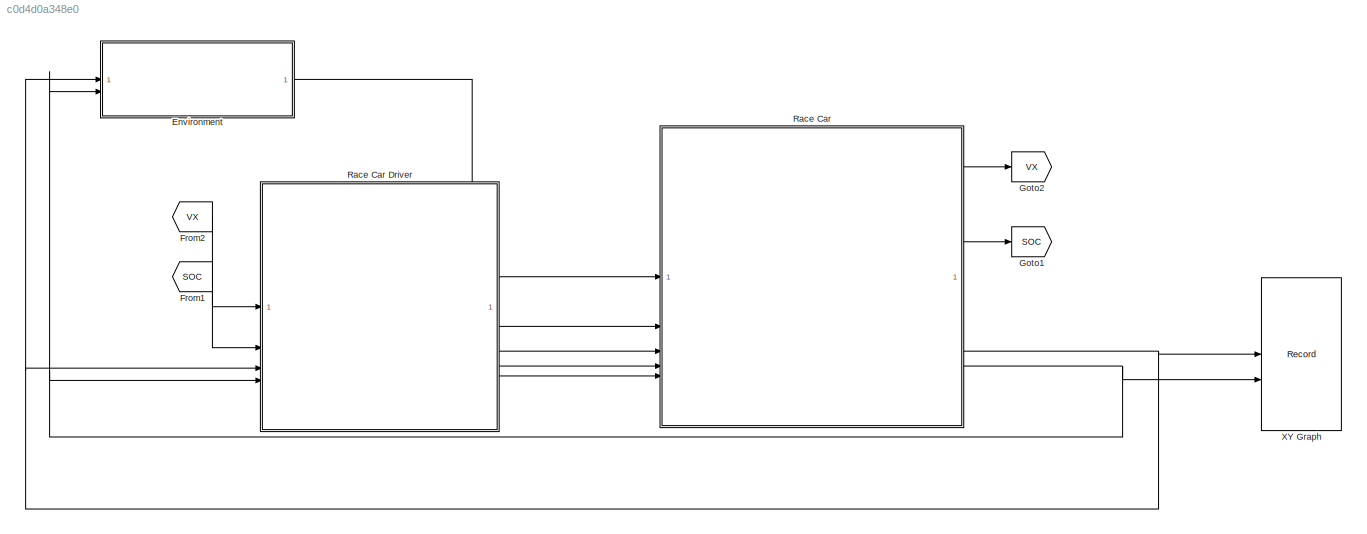
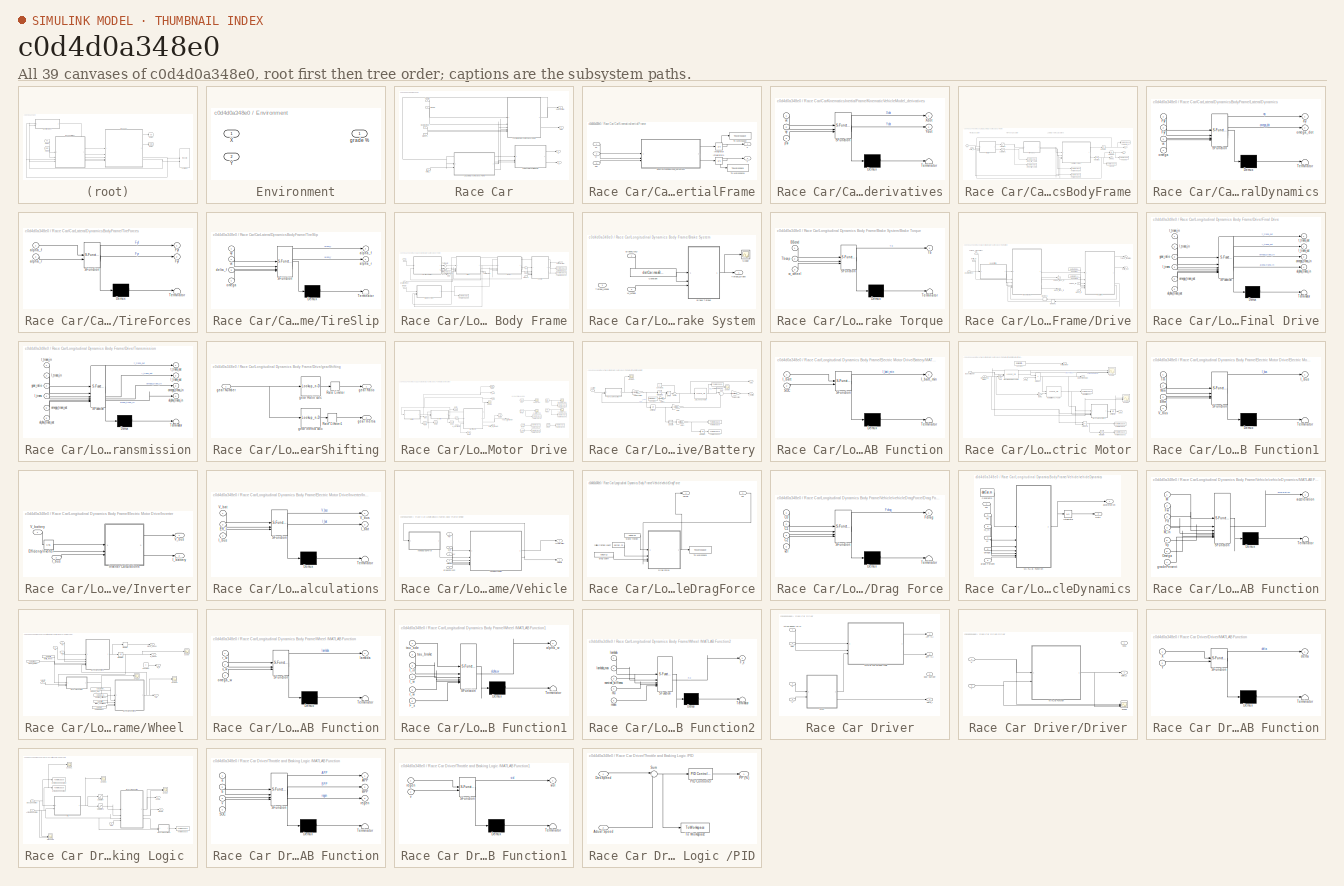
[diagram: thumbnail index - all 39 canvases of the model, root first then tree order]
MODEL slx_c0d4d0a348e0
KIND model
CONFIG AbsTol = auto
CONFIG EnableMultiTasking = off
CONFIG FixedStep = 0.001
CONFIG MaxStep = auto
CONFIG MinStep = auto
CONFIG RelTol = 1e-3
CONFIG SampleTimeConstraint = Unconstrained
CONFIG SolverName = ode5
CONFIG StartTime = 0.0
CONFIG StopTime = 250
BLOCK [SubSystem] Environment
BLOCK [Inport] Environment/X
BLOCK [Inport] Environment/Y
  Port = 2
BLOCK [Outport] Environment/grade %
BLOCK [From] From1
  GotoTag = SOC
BLOCK [From] From2
  GotoTag = VX
BLOCK [Goto] Goto1
  GotoTag = SOC
BLOCK [Goto] Goto2
  GotoTag = VX
BLOCK [SubSystem] Race Car
BLOCK [SubSystem] Race Car Driver
BLOCK [Outport] Race Car Driver/APP (%)
BLOCK [Inport] Race Car Driver/Actual Speed (m//s)
BLOCK [Outport] Race Car Driver/BPP (%)
  Port = 2
BLOCK [SubSystem] Race Car Driver/Driver
BLOCK [SubSystem] Race Car Driver/Driver/MATLAB Function
  ErrorFcn = Stateflow.Translate.translate
  PermitHierarchicalResolution = ExplicitOnly
  SFBlockType = MATLAB Function
  TreatAsAtomicUnit = on
BLOCK [Demux] Race Car Driver/Driver/MATLAB Function/ Demux 
  Outputs = 1
BLOCK [S-Function] Race Car Driver/Driver/MATLAB Function/ SFunction 
  EnableBusSupport = on
  FunctionName = sf_sfun
  PortCounts = [2 2]
  SFcnIsStateOwnerBlock = off
  SFunctionDeploymentMode = off
  Tag = Stateflow S-Function 17
BLOCK [Terminator] Race Car Driver/Driver/MATLAB Function/ Terminator 
BLOCK [Inport] Race Car Driver/Driver/MATLAB Function/X
BLOCK [Inport] Race Car Driver/Driver/MATLAB Function/Y
  Port = 2
BLOCK [Outport] Race Car Driver/Driver/MATLAB Function/delta
BLOCK [Scope] Race Car Driver/Driver/Scope
  Floating = off
  NumInputPorts = 3
  ScopeSpecificationString = Simulink.scopes.TimeScopeBlockCfg('CurrentConfiguration', extmgr.ConfigurationSet(extmgr.Configuration('Core','General UI',true),extmgr.Configuration('Core','Source UI',true),extmgr.Configuration('Sources','WiredSimulink',true),extmgr.Configuration('Visuals','Time Domain',true,'SerializedDisplays',{struct('MinYLimReal','-351.50186','MaxYLimReal','1255.09761','YLabelReal','','MinYLimMag',' 0.00000'...<+2714ch>
BLOCK [Outport] Race Car Driver/Driver/Vxd1
BLOCK [Inport] Race Car Driver/Driver/X
BLOCK [Inport] Race Car Driver/Driver/Y
  Port = 2
BLOCK [Outport] Race Car Driver/Driver/delta_f
  Port = 2
BLOCK [Outport] Race Car Driver/Gear Number
  Port = 3
BLOCK [Inport] Race Car Driver/SOC
  Port = 2
BLOCK [SubSystem] Race Car Driver/Throttle and Braking Logic 
BLOCK [Outport] Race Car Driver/Throttle and Braking Logic /APP (%)
BLOCK [Inport] Race Car Driver/Throttle and Braking Logic /Actual Speed (m//s)
BLOCK [Outport] Race Car Driver/Throttle and Braking Logic /BPP (%)
  Port = 2
BLOCK [Inport] Race Car Driver/Throttle and Braking Logic /Des Speed (m//s) 
  Port = 3
BLOCK [SubSystem] Race Car Driver/Throttle and Braking Logic /MATLAB Function
  ErrorFcn = Stateflow.Translate.translate
  LibrarySourceBlock = simulink/User-Defined\nFunctions/MATLAB Function
  PermitHierarchicalResolution = ExplicitOnly
  SFBlockType = MATLAB Function
  TreatAsAtomicUnit = on
BLOCK [Demux] Race Car Driver/Throttle and Braking Logic /MATLAB Function/ Demux 
  Outputs = 1
BLOCK [S-Function] Race Car Driver/Throttle and Braking Logic /MATLAB Function/ SFunction 
  EnableBusSupport = on
  FunctionName = sf_sfun
  PortCounts = [4 4]
  SFcnIsStateOwnerBlock = off
  SFunctionDeploymentMode = off
  Tag = Stateflow S-Function 12
BLOCK [Terminator] Race Car Driver/Throttle and Braking Logic /MATLAB Function/ Terminator 
BLOCK [Outport] Race Car Driver/Throttle and Braking Logic /MATLAB Function/APP
BLOCK [Outport] Race Car Driver/Throttle and Braking Logic /MATLAB Function/BPP
  Port = 2
BLOCK [Inport] Race Car Driver/Throttle and Braking Logic /MATLAB Function/SOC
  Port = 4
BLOCK [Inport] Race Car Driver/Throttle and Braking Logic /MATLAB Function/a
BLOCK [Inport] Race Car Driver/Throttle and Braking Logic /MATLAB Function/b
  Port = 2
BLOCK [Outport] Race Car Driver/Throttle and Braking Logic /MATLAB Function/regen
  Port = 3
BLOCK [Inport] Race Car Driver/Throttle and Braking Logic /MATLAB Function/v
  Port = 3
BLOCK [SubSystem] Race Car Driver/Throttle and Braking Logic /MATLAB Function1
  ErrorFcn = Stateflow.Translate.translate
  LibrarySourceBlock = simulink/User-Defined\nFunctions/MATLAB Function
  PermitHierarchicalResolution = ExplicitOnly
  SFBlockType = MATLAB Function
  TreatAsAtomicUnit = on
BLOCK [Demux] Race Car Driver/Throttle and Braking Logic /MATLAB Function1/ Demux 
  Outputs = 1
BLOCK [S-Function] Race Car Driver/Throttle and Braking Logic /MATLAB Function1/ SFunction 
  EnableBusSupport = on
  FunctionName = sf_sfun
  PortCounts = [2 2]
  SFcnIsStateOwnerBlock = off
  SFunctionDeploymentMode = off
  Tag = Stateflow S-Function 14
BLOCK [Terminator] Race Car Driver/Throttle and Braking Logic /MATLAB Function1/ Terminator 
BLOCK [Inport] Race Car Driver/Throttle and Braking Logic /MATLAB Function1/regen
BLOCK [Inport] Race Car Driver/Throttle and Braking Logic /MATLAB Function1/v
  Port = 2
BLOCK [Outport] Race Car Driver/Throttle and Braking Logic /MATLAB Function1/viol
BLOCK [SubSystem] Race Car Driver/Throttle and Braking Logic /PID
BLOCK [Scope] Race Car Driver/Throttle and Braking Logic /PID Tuning
  Floating = off
  NumInputPorts = 2
  ScopeSpecificationString = Simulink.scopes.TimeScopeBlockCfg('CurrentConfiguration', extmgr.ConfigurationSet(extmgr.Configuration('Core','General UI',true,'FigureColor',[1 1 1]),extmgr.Configuration('Core','Source UI',true),extmgr.Configuration('Sources','WiredSimulink',true,'DataLoggingVariableName','ScopeData1'),extmgr.Configuration('Visuals','Time Domain',true,'SerializedDisplays',{struct('MinYLimReal','-4.40832','MaxYLi...<+1508ch>
BLOCK [Inport] Race Car Driver/Throttle and Braking Logic /PID/Actual Speed
  Port = 2
BLOCK [Inport] Race Car Driver/Throttle and Braking Logic /PID/Des Speed 
BLOCK [Reference] Race Car Driver/Throttle and Braking Logic /PID/PID Controller  REF=slpidlib/PID Controller
  LibrarySourceBlock = simulink/Continuous/PID Controller
  SourceBlock = slpidlib/PID Controller
  SourceType = PID 1dof
BLOCK [Outport] Race Car Driver/Throttle and Braking Logic /PID/PP (%)
BLOCK [Sum] Race Car Driver/Throttle and Braking Logic /PID/Sum
  Inputs = |+-
BLOCK [ToWorkspace] Race Car Driver/Throttle and Braking Logic /PID/To Workspace
  FixptAsFi = on
  MaxDataPoints = inf
  SampleTime = -1
  SaveFormat = Timeseries
  VariableName = v_error
BLOCK [Inport] Race Car Driver/Throttle and Braking Logic /SOC
  Port = 2
BLOCK [Saturate] Race Car Driver/Throttle and Braking Logic /Saturation
  LowerLimit = 0
  UpperLimit = 1
BLOCK [Saturate] Race Car Driver/Throttle and Braking Logic /Saturation1
  LowerLimit = -1
  UpperLimit = 0
BLOCK [Scope] Race Car Driver/Throttle and Braking Logic /Scope
  Floating = off
  NumInputPorts = 2
  ScopeSpecificationString = Simulink.scopes.TimeScopeBlockCfg('CurrentConfiguration', extmgr.ConfigurationSet(extmgr.Configuration('Core','General UI',true),extmgr.Configuration('Core','Source UI',true),extmgr.Configuration('Sources','WiredSimulink',true,'DataLoggingVariableName','ScopeData1'),extmgr.Configuration('Visuals','Time Domain',true,'SerializedDisplays',{struct('MinYLimReal','-1.0607','MaxYLimReal','1.06103','YLabe...<+1535ch>
BLOCK [Scope] Race Car Driver/Throttle and Braking Logic /Scope1
  Floating = off
  NumInputPorts = 1
  ScopeSpecificationString = Simulink.scopes.TimeScopeBlockCfg('CurrentConfiguration', extmgr.ConfigurationSet(extmgr.Configuration('Core','General UI',true),extmgr.Configuration('Core','Source UI',true),extmgr.Configuration('Sources','WiredSimulink',true,'DataLoggingVariableName','ScopeData1'),extmgr.Configuration('Visuals','Time Domain',true,'SerializedDisplays',{struct('MinYLimReal','-3.08288','MaxYLimReal','27.75461','YLa...<+1499ch>
BLOCK [Scope] Race Car Driver/Throttle and Braking Logic /Scope2
  Floating = off
  NumInputPorts = 2
  ScopeSpecificationString = Simulink.scopes.TimeScopeBlockCfg('CurrentConfiguration', extmgr.ConfigurationSet(extmgr.Configuration('Core','General UI',true),extmgr.Configuration('Core','Source UI',true),extmgr.Configuration('Sources','WiredSimulink',true,'DataLoggingVariableName','ScopeData5'),extmgr.Configuration('Visuals','Time Domain',true,'SerializedDisplays',{struct('MinYLimReal','-1.0607','MaxYLimReal','1.06103','YLabe...<+1509ch>
BLOCK [ToWorkspace] Race Car Driver/Throttle and Braking Logic /To Workspace
  FixptAsFi = on
  MaxDataPoints = inf
  SampleTime = -1
  SaveFormat = Timeseries
  VariableName = brake
BLOCK [ToWorkspace] Race Car Driver/Throttle and Braking Logic /actual speed output
  FixptAsFi = on
  MaxDataPoints = inf
  SampleTime = -1
  SaveFormat = Timeseries
  VariableName = veh_speed
BLOCK [ToWorkspace] Race Car Driver/Throttle and Braking Logic /desired speed output
  FixptAsFi = on
  MaxDataPoints = inf
  SampleTime = -1
  SaveFormat = Timeseries
  VariableName = veh_speed_desd
BLOCK [Inport] Race Car Driver/X
  Port = 3
BLOCK [Inport] Race Car Driver/Y
  Port = 4
BLOCK [Outport] Race Car Driver/delta_f
  Port = 4
BLOCK [Inport] Race Car/APP (%)
  Port = 2
BLOCK [Inport] Race Car/BPP (%) 
  Port = 3
BLOCK [SubSystem] Race Car/CarKinematicsInertialFrame
BLOCK [Integrator] Race Car/CarKinematicsInertialFrame/Integrator
  InitialCondition = datCar.init.X0
BLOCK [Integrator] Race Car/CarKinematicsInertialFrame/Integrator1
  InitialCondition = datCar.init.Y0
BLOCK [SubSystem] Race Car/CarKinematicsInertialFrame/KinematicVehicleModel_derivatives
  ErrorFcn = Stateflow.Translate.translate
  PermitHierarchicalResolution = ExplicitOnly
  SFBlockType = MATLAB Function
  TreatAsAtomicUnit = on
BLOCK [Demux] Race Car/CarKinematicsInertialFrame/KinematicVehicleModel_derivatives/ Demux 
  Outputs = 1
BLOCK [S-Function] Race Car/CarKinematicsInertialFrame/KinematicVehicleModel_derivatives/ SFunction 
  EnableBusSupport = on
  FunctionName = sf_sfun
  PortCounts = [3 3]
  SFcnIsStateOwnerBlock = off
  SFunctionDeploymentMode = off
  Tag = Stateflow S-Function 6
BLOCK [Terminator] Race Car/CarKinematicsInertialFrame/KinematicVehicleModel_derivatives/ Terminator 
BLOCK [Outport] Race Car/CarKinematicsInertialFrame/KinematicVehicleModel_derivatives/Xdot
BLOCK [Outport] Race Car/CarKinematicsInertialFrame/KinematicVehicleModel_derivatives/Ydot
  Port = 2
BLOCK [Inport] Race Car/CarKinematicsInertialFrame/KinematicVehicleModel_derivatives/psi
  Port = 3
BLOCK [Inport] Race Car/CarKinematicsInertialFrame/KinematicVehicleModel_derivatives/vx
BLOCK [Inport] Race Car/CarKinematicsInertialFrame/KinematicVehicleModel_derivatives/vy
  Port = 2
BLOCK [ToWorkspace] Race Car/CarKinematicsInertialFrame/To Workspace
  FixptAsFi = on
  MaxDataPoints = inf
  SampleTime = -1
  SaveFormat = Timeseries
  VariableName = X
BLOCK [ToWorkspace] Race Car/CarKinematicsInertialFrame/To Workspace1
  FixptAsFi = on
  MaxDataPoints = inf
  SampleTime = -1
  SaveFormat = Timeseries
  VariableName = Y
BLOCK [Outport] Race Car/CarKinematicsInertialFrame/X
BLOCK [Outport] Race Car/CarKinematicsInertialFrame/Y
  Port = 2
BLOCK [Inport] Race Car/CarKinematicsInertialFrame/psi
  Port = 3
BLOCK [Inport] Race Car/CarKinematicsInertialFrame/vx
BLOCK [Inport] Race Car/CarKinematicsInertialFrame/vy
  Port = 2
BLOCK [SubSystem] Race Car/CarLateralDynamicsBodyFrame
BLOCK [ToWorkspace] Race Car/CarLateralDynamicsBodyFrame/Front_Slip_Angle
  FixptAsFi = on
  MaxDataPoints = inf
  SampleTime = -1
  SaveFormat = Timeseries
  VariableName = alpha_f
BLOCK [ToWorkspace] Race Car/CarLateralDynamicsBodyFrame/Heading
  FixptAsFi = on
  MaxDataPoints = inf
  SampleTime = -1
  SaveFormat = Timeseries
  VariableName = psi
BLOCK [Integrator] Race Car/CarLateralDynamicsBodyFrame/Integrator
  InitialCondition = datCar.init.vy0
BLOCK [Integrator] Race Car/CarLateralDynamicsBodyFrame/Integrator1
  InitialCondition = datCar.init.omega0
BLOCK [Integrator] Race Car/CarLateralDynamicsBodyFrame/Integrator2
  InitialCondition = datCar.init.psi0
BLOCK [SubSystem] Race Car/CarLateralDynamicsBodyFrame/LateralDynamics
  ErrorFcn = Stateflow.Translate.translate
  PermitHierarchicalResolution = ExplicitOnly
  SFBlockType = MATLAB Function
  TreatAsAtomicUnit = on
BLOCK [Demux] Race Car/CarLateralDynamicsBodyFrame/LateralDynamics/ Demux 
  Outputs = 1
BLOCK [S-Function] Race Car/CarLateralDynamicsBodyFrame/LateralDynamics/ SFunction 
  EnableBusSupport = on
  FunctionName = sf_sfun
  Parameters = obj
  PortCounts = [4 3]
  SFcnIsStateOwnerBlock = off
  SFunctionDeploymentMode = off
  Tag = Stateflow S-Function 8
BLOCK [Terminator] Race Car/CarLateralDynamicsBodyFrame/LateralDynamics/ Terminator 
BLOCK [Inport] Race Car/CarLateralDynamicsBodyFrame/LateralDynamics/Fyf
BLOCK [Inport] Race Car/CarLateralDynamicsBodyFrame/LateralDynamics/Fyr
  Port = 2
BLOCK [Outport] Race Car/CarLateralDynamicsBodyFrame/LateralDynamics/ay
BLOCK [Inport] Race Car/CarLateralDynamicsBodyFrame/LateralDynamics/omega
  Port = 4
BLOCK [Outport] Race Car/CarLateralDynamicsBodyFrame/LateralDynamics/omega_dot
  Port = 2
BLOCK [Inport] Race Car/CarLateralDynamicsBodyFrame/LateralDynamics/vx
  Port = 3
BLOCK [ToWorkspace] Race Car/CarLateralDynamicsBodyFrame/Rear_Slip_Angle
  FixptAsFi = on
  MaxDataPoints = inf
  SampleTime = -1
  SaveFormat = Timeseries
  VariableName = alpha_r
BLOCK [Saturate] Race Car/CarLateralDynamicsBodyFrame/Saturation
  LowerLimit = -datCar.maxAlpha
  UpperLimit = datCar.maxAlpha
BLOCK [Saturate] Race Car/CarLateralDynamicsBodyFrame/Saturation1
  LowerLimit = -datCar.maxAlpha
  UpperLimit = datCar.maxAlpha
BLOCK [SubSystem] Race Car/CarLateralDynamicsBodyFrame/TireForces
  ErrorFcn = Stateflow.Translate.translate
  PermitHierarchicalResolution = ExplicitOnly
  SFBlockType = MATLAB Function
  TreatAsAtomicUnit = on
BLOCK [Demux] Race Car/CarLateralDynamicsBodyFrame/TireForces/ Demux 
  Outputs = 1
BLOCK [S-Function] Race Car/CarLateralDynamicsBodyFrame/TireForces/ SFunction 
  EnableBusSupport = on
  FunctionName = sf_sfun
  Parameters = obj
  PortCounts = [2 3]
  SFcnIsStateOwnerBlock = off
  SFunctionDeploymentMode = off
  Tag = Stateflow S-Function 11
BLOCK [Terminator] Race Car/CarLateralDynamicsBodyFrame/TireForces/ Terminator 
BLOCK [Outport] Race Car/CarLateralDynamicsBodyFrame/TireForces/Fyf
BLOCK [Outport] Race Car/CarLateralDynamicsBodyFrame/TireForces/Fyr
  Port = 2
BLOCK [Inport] Race Car/CarLateralDynamicsBodyFrame/TireForces/alpha_f
BLOCK [Inport] Race Car/CarLateralDynamicsBodyFrame/TireForces/alpha_r
  Port = 2
BLOCK [SubSystem] Race Car/CarLateralDynamicsBodyFrame/TireSlip
  ErrorFcn = Stateflow.Translate.translate
  PermitHierarchicalResolution = ExplicitOnly
  SFBlockType = MATLAB Function
  TreatAsAtomicUnit = on
BLOCK [Demux] Race Car/CarLateralDynamicsBodyFrame/TireSlip/ Demux 
  Outputs = 1
BLOCK [S-Function] Race Car/CarLateralDynamicsBodyFrame/TireSlip/ SFunction 
  EnableBusSupport = on
  FunctionName = sf_sfun
  Parameters = obj
  PortCounts = [4 3]
  SFcnIsStateOwnerBlock = off
  SFunctionDeploymentMode = off
  Tag = Stateflow S-Function 15
BLOCK [Terminator] Race Car/CarLateralDynamicsBodyFrame/TireSlip/ Terminator 
BLOCK [Outport] Race Car/CarLateralDynamicsBodyFrame/TireSlip/alpha_f
BLOCK [Outport] Race Car/CarLateralDynamicsBodyFrame/TireSlip/alpha_r
  Port = 2
BLOCK [Inport] Race Car/CarLateralDynamicsBodyFrame/TireSlip/delta_f
  Port = 3
BLOCK [Inport] Race Car/CarLateralDynamicsBodyFrame/TireSlip/omega
  Port = 4
BLOCK [Inport] Race Car/CarLateralDynamicsBodyFrame/TireSlip/vx
  Port = 2
BLOCK [Inport] Race Car/CarLateralDynamicsBodyFrame/TireSlip/vy
BLOCK [ToWorkspace] Race Car/CarLateralDynamicsBodyFrame/To Workspace5
  FixptAsFi = on
  MaxDataPoints = inf
  SampleTime = -1
  SaveFormat = Timeseries
  VariableName = Fyf
BLOCK [ToWorkspace] Race Car/CarLateralDynamicsBodyFrame/To Workspace6
  FixptAsFi = on
  MaxDataPoints = inf
  SampleTime = -1
  SaveFormat = Timeseries
  VariableName = Fyr
BLOCK [ToWorkspace] Race Car/CarLateralDynamicsBodyFrame/Velocity_Y
  FixptAsFi = on
  MaxDataPoints = inf
  SampleTime = -1
  SaveFormat = Timeseries
  VariableName = vy
BLOCK [ToWorkspace] Race Car/CarLateralDynamicsBodyFrame/Yaw Rate
  FixptAsFi = on
  MaxDataPoints = inf
  SampleTime = -1
  SaveFormat = Timeseries
  VariableName = omega
BLOCK [Inport] Race Car/CarLateralDynamicsBodyFrame/delta_f
  Port = 2
BLOCK [Outport] Race Car/CarLateralDynamicsBodyFrame/omega
  Port = 3
BLOCK [Outport] Race Car/CarLateralDynamicsBodyFrame/psi
  Port = 2
BLOCK [Inport] Race Car/CarLateralDynamicsBodyFrame/vx
BLOCK [Outport] Race Car/CarLateralDynamicsBodyFrame/vy
BLOCK [Inport] Race Car/Gear Number
  Port = 4
BLOCK [SubSystem] Race Car/Longitudinal Dynamics Body Frame
BLOCK [Inport] Race Car/Longitudinal Dynamics Body Frame/APP (%)
BLOCK [Inport] Race Car/Longitudinal Dynamics Body Frame/BPP (%) 
  Port = 2
BLOCK [SubSystem] Race Car/Longitudinal Dynamics Body Frame/Brake System
BLOCK [SubSystem] Race Car/Longitudinal Dynamics Body Frame/Brake System/Brake Torque
  ErrorFcn = Stateflow.Translate.translate
  PermitHierarchicalResolution = ExplicitOnly
  SFBlockType = MATLAB Function
  TreatAsAtomicUnit = on
BLOCK [Demux] Race Car/Longitudinal Dynamics Body Frame/Brake System/Brake Torque/ Demux 
  Outputs = 1
BLOCK [S-Function] Race Car/Longitudinal Dynamics Body Frame/Brake System/Brake Torque/ SFunction 
  EnableBusSupport = on
  FunctionName = sf_sfun
  PortCounts = [3 2]
  SFcnIsStateOwnerBlock = off
  SFunctionDeploymentMode = off
  Tag = Stateflow S-Function 7
BLOCK [Terminator] Race Car/Longitudinal Dynamics Body Frame/Brake System/Brake Torque/ Terminator 
BLOCK [Inport] Race Car/Longitudinal Dynamics Body Frame/Brake System/Brake Torque/BBcmd
BLOCK [Outport] Race Car/Longitudinal Dynamics Body Frame/Brake System/Brake Torque/Tb
BLOCK [Inport] Race Car/Longitudinal Dynamics Body Frame/Brake System/Brake Torque/Tbcap
  Port = 2
BLOCK [Inport] Race Car/Longitudinal Dynamics Body Frame/Brake System/Brake Torque/w_wheel
  Port = 3
BLOCK [Inport] Race Car/Longitudinal Dynamics Body Frame/Brake System/BrakeCMD 
BLOCK [Constant] Race Car/Longitudinal Dynamics Body Frame/Brake System/Constant
  Value = datCar.maxBrakeTorque
BLOCK [Scope] Race Car/Longitudinal Dynamics Body Frame/Brake System/Scope
  Floating = off
  NumInputPorts = 1
  ScopeSpecificationString = Simulink.scopes.TimeScopeBlockCfg('CurrentConfiguration', extmgr.ConfigurationSet(extmgr.Configuration('Core','General UI',true),extmgr.Configuration('Core','Source UI',true),extmgr.Configuration('Sources','WiredSimulink',true,'DataLoggingVariableName','ScopeData4'),extmgr.Configuration('Visuals','Time Domain',true,'SerializedDisplays',{struct('MinYLimReal','-3252.17168','MaxYLimReal','56.62718','...<+1497ch>
BLOCK [Outport] Race Car/Longitudinal Dynamics Body Frame/Brake System/Torque_Brake
  VectorParamsAs1DForOutWhenUnconnected = off
BLOCK [Inport] Race Car/Longitudinal Dynamics Body Frame/Brake System/Torque_Wheel
  Port = 3
BLOCK [Inport] Race Car/Longitudinal Dynamics Body Frame/Brake System/W_Wheel
  Port = 2
BLOCK [SubSystem] Race Car/Longitudinal Dynamics Body Frame/Drive
BLOCK [Constant] Race Car/Longitudinal Dynamics Body Frame/Drive/Constant
  Value = datCar.FDRatio
BLOCK [Constant] Race Car/Longitudinal Dynamics Body Frame/Drive/Constant1
  Value = datCar.FD_Inertia
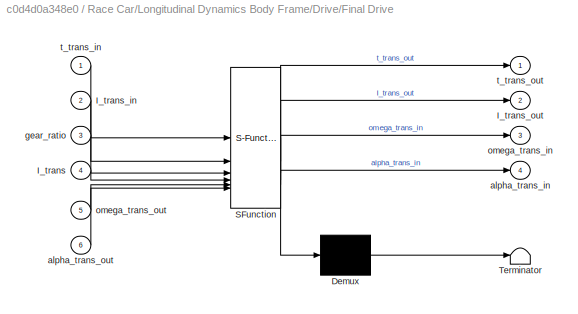
BLOCK [SubSystem] Race Car/Longitudinal Dynamics Body Frame/Drive/Final Drive
  ErrorFcn = Stateflow.Translate.translate
  PermitHierarchicalResolution = ExplicitOnly
  SFBlockType = MATLAB Function
  TreatAsAtomicUnit = on
BLOCK [Demux] Race Car/Longitudinal Dynamics Body Frame/Drive/Final Drive/ Demux 
  Outputs = 1
BLOCK [S-Function] Race Car/Longitudinal Dynamics Body Frame/Drive/Final Drive/ SFunction 
  EnableBusSupport = on
  FunctionName = sf_sfun
  PortCounts = [6 5]
  SFcnIsStateOwnerBlock = off
  SFunctionDeploymentMode = off
  Tag = Stateflow S-Function 18
BLOCK [Terminator] Race Car/Longitudinal Dynamics Body Frame/Drive/Final Drive/ Terminator 
BLOCK [Inport] Race Car/Longitudinal Dynamics Body Frame/Drive/Final Drive/I_trans
  Port = 4
BLOCK [Inport] Race Car/Longitudinal Dynamics Body Frame/Drive/Final Drive/I_trans_in
  Port = 2
BLOCK [Outport] Race Car/Longitudinal Dynamics Body Frame/Drive/Final Drive/I_trans_out
  Port = 2
BLOCK [Outport] Race Car/Longitudinal Dynamics Body Frame/Drive/Final Drive/alpha_trans_in
  Port = 4
BLOCK [Inport] Race Car/Longitudinal Dynamics Body Frame/Drive/Final Drive/alpha_trans_out
  Port = 6
BLOCK [Inport] Race Car/Longitudinal Dynamics Body Frame/Drive/Final Drive/gear_ratio
  Port = 3
BLOCK [Outport] Race Car/Longitudinal Dynamics Body Frame/Drive/Final Drive/omega_trans_in
  Port = 3
BLOCK [Inport] Race Car/Longitudinal Dynamics Body Frame/Drive/Final Drive/omega_trans_out
  Port = 5
BLOCK [Inport] Race Car/Longitudinal Dynamics Body Frame/Drive/Final Drive/t_trans_in
BLOCK [Outport] Race Car/Longitudinal Dynamics Body Frame/Drive/Final Drive/t_trans_out
BLOCK [Inport] Race Car/Longitudinal Dynamics Body Frame/Drive/Inertia_In
  Port = 2
BLOCK [Outport] Race Car/Longitudinal Dynamics Body Frame/Drive/Inertia_Out
  Port = 2
BLOCK [Memory] Race Car/Longitudinal Dynamics Body Frame/Drive/Memory2
BLOCK [Memory] Race Car/Longitudinal Dynamics Body Frame/Drive/Memory3
BLOCK [Inport] Race Car/Longitudinal Dynamics Body Frame/Drive/Torque_Transmission
BLOCK [Outport] Race Car/Longitudinal Dynamics Body Frame/Drive/Torque_finalDrive
BLOCK [SubSystem] Race Car/Longitudinal Dynamics Body Frame/Drive/Transmission
  ErrorFcn = Stateflow.Translate.translate
  PermitHierarchicalResolution = ExplicitOnly
  SFBlockType = MATLAB Function
  TreatAsAtomicUnit = on
BLOCK [Demux] Race Car/Longitudinal Dynamics Body Frame/Drive/Transmission/ Demux 
  Outputs = 1
BLOCK [S-Function] Race Car/Longitudinal Dynamics Body Frame/Drive/Transmission/ SFunction 
  EnableBusSupport = on
  FunctionName = sf_sfun
  PortCounts = [6 5]
  SFcnIsStateOwnerBlock = off
  SFunctionDeploymentMode = off
  Tag = Stateflow S-Function 16
BLOCK [Terminator] Race Car/Longitudinal Dynamics Body Frame/Drive/Transmission/ Terminator 
BLOCK [Inport] Race Car/Longitudinal Dynamics Body Frame/Drive/Transmission/I_trans
  Port = 4
BLOCK [Inport] Race Car/Longitudinal Dynamics Body Frame/Drive/Transmission/I_trans_in
  Port = 2
BLOCK [Outport] Race Car/Longitudinal Dynamics Body Frame/Drive/Transmission/I_trans_out
  Port = 2
BLOCK [Outport] Race Car/Longitudinal Dynamics Body Frame/Drive/Transmission/alpha_trans_in
  Port = 4
BLOCK [Inport] Race Car/Longitudinal Dynamics Body Frame/Drive/Transmission/alpha_trans_out
  Port = 6
BLOCK [Inport] Race Car/Longitudinal Dynamics Body Frame/Drive/Transmission/gear_ratio
  Port = 3
BLOCK [Outport] Race Car/Longitudinal Dynamics Body Frame/Drive/Transmission/omega_trans_in
  Port = 3
BLOCK [Inport] Race Car/Longitudinal Dynamics Body Frame/Drive/Transmission/omega_trans_out
  Port = 5
BLOCK [Inport] Race Car/Longitudinal Dynamics Body Frame/Drive/Transmission/t_trans_in
BLOCK [Outport] Race Car/Longitudinal Dynamics Body Frame/Drive/Transmission/t_trans_out
BLOCK [Inport] Race Car/Longitudinal Dynamics Body Frame/Drive/alpha_fd
  Port = 4
BLOCK [Outport] Race Car/Longitudinal Dynamics Body Frame/Drive/alpha_trans_in
  Port = 4
BLOCK [Inport] Race Car/Longitudinal Dynamics Body Frame/Drive/gear Number
  Port = 5
BLOCK [SubSystem] Race Car/Longitudinal Dynamics Body Frame/Drive/gearShifting
BLOCK [RateLimiter] Race Car/Longitudinal Dynamics Body Frame/Drive/gearShifting/Rate Limiter
  SampleTimeMode = inherited
BLOCK [RateLimiter] Race Car/Longitudinal Dynamics Body Frame/Drive/gearShifting/Rate Limiter1
  SampleTimeMode = inherited
BLOCK [Outport] Race Car/Longitudinal Dynamics Body Frame/Drive/gearShifting/gear Inertia
  Port = 2
BLOCK [Lookup_n-D] Race Car/Longitudinal Dynamics Body Frame/Drive/gearShifting/gear Inertia calc
  BreakpointsForDimension1 = datCar.gear.gearNumbers
  InputPortMap = u0
  InternalRulePriority = Speed
  NumberOfTableDimensions = 1
  RndMeth = Simplest
  Table = datCar.gear.gearInertias
BLOCK [Inport] Race Car/Longitudinal Dynamics Body Frame/Drive/gearShifting/gear Number
BLOCK [Outport] Race Car/Longitudinal Dynamics Body Frame/Drive/gearShifting/gear Ratio
BLOCK [Lookup_n-D] Race Car/Longitudinal Dynamics Body Frame/Drive/gearShifting/gear Ratio calc
  BreakpointsForDimension1 = datCar.gear.gearNumbers
  InputPortMap = u0
  InternalRulePriority = Speed
  NumberOfTableDimensions = 1
  RndMeth = Simplest
  Table = datCar.gear.gearRatios
BLOCK [Inport] Race Car/Longitudinal Dynamics Body Frame/Drive/omega_fd
  Port = 3
BLOCK [Outport] Race Car/Longitudinal Dynamics Body Frame/Drive/omega_trans_in
  Port = 3
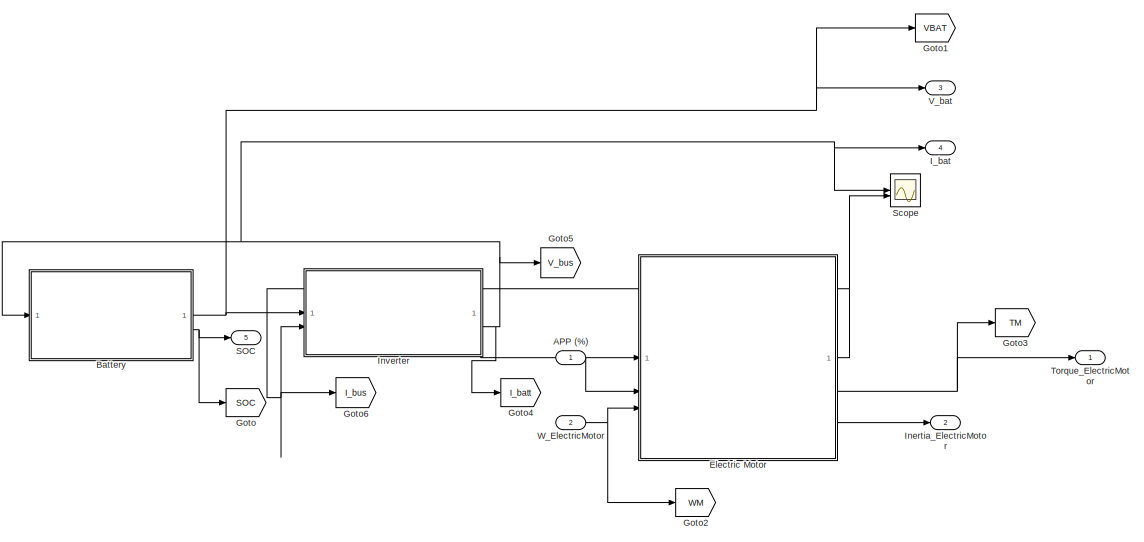
[diagram: Race Car/Longitudinal Dynamics Body Frame/Electric Motor Drive - part 1/2, center side, full height]
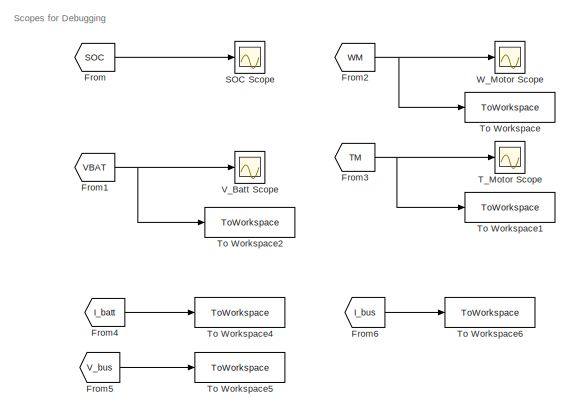
[diagram: Race Car/Longitudinal Dynamics Body Frame/Electric Motor Drive - part 2/2, middle right region]
BLOCK [SubSystem] Race Car/Longitudinal Dynamics Body Frame/Electric Motor Drive
BLOCK [Inport] Race Car/Longitudinal Dynamics Body Frame/Electric Motor Drive/APP (%)
BLOCK [SubSystem] Race Car/Longitudinal Dynamics Body Frame/Electric Motor Drive/Battery
BLOCK [Lookup_n-D] Race Car/Longitudinal Dynamics Body Frame/Electric Motor Drive/Battery/1-D Lookup Table
  BreakpointsForDimension1 = datBat.SOC
  ExtrapMethod = Clip
  InputPortMap = u0
  InternalRulePriority = Speed
  NumberOfTableDimensions = 1
  RndMeth = Simplest
  Table = datBat.OCV
  UseLastTableValue = on
BLOCK [Gain] Race Car/Longitudinal Dynamics Body Frame/Electric Motor Drive/Battery/Cells in Parallel
  Gain = 1/datBat.numParallel
BLOCK [Gain] Race Car/Longitudinal Dynamics Body Frame/Electric Motor Drive/Battery/Cells in series
  Gain = datBat.numSeries
BLOCK [Constant] Race Car/Longitudinal Dynamics Body Frame/Electric Motor Drive/Battery/Constant
  Value = datBat.C*3600
BLOCK [Constant] Race Car/Longitudinal Dynamics Body Frame/Electric Motor Drive/Battery/Constant1
BLOCK [Product] Race Car/Longitudinal Dynamics Body Frame/Electric Motor Drive/Battery/Divide
  Inputs = */
BLOCK [Gain] Race Car/Longitudinal Dynamics Body Frame/Electric Motor Drive/Battery/Gain
  Gain = datBat.Rint
BLOCK [Gain] Race Car/Longitudinal Dynamics Body Frame/Electric Motor Drive/Battery/Gain1
  Gain = datBat.Rint
BLOCK [Gain] Race Car/Longitudinal Dynamics Body Frame/Electric Motor Drive/Battery/Gain2
  Gain = 1/datBat.numParallel
BLOCK [Inport] Race Car/Longitudinal Dynamics Body Frame/Electric Motor Drive/Battery/I_battery
BLOCK [Integrator] Race Car/Longitudinal Dynamics Body Frame/Electric Motor Drive/Battery/Integrator
BLOCK [Integrator] Race Car/Longitudinal Dynamics Body Frame/Electric Motor Drive/Battery/Integrator1
  InitialCondition = 1459.5
BLOCK [SubSystem] Race Car/Longitudinal Dynamics Body Frame/Electric Motor Drive/Battery/MATLAB Function
  ErrorFcn = Stateflow.Translate.translate
  LibrarySourceBlock = simulink/User-Defined\nFunctions/MATLAB Function
  PermitHierarchicalResolution = ExplicitOnly
  SFBlockType = MATLAB Function
  TreatAsAtomicUnit = on
BLOCK [Demux] Race Car/Longitudinal Dynamics Body Frame/Electric Motor Drive/Battery/MATLAB Function/ Demux 
  Outputs = 1
BLOCK [S-Function] Race Car/Longitudinal Dynamics Body Frame/Electric Motor Drive/Battery/MATLAB Function/ SFunction 
  EnableBusSupport = on
  FunctionName = sf_sfun
  PortCounts = [2 2]
  SFcnIsStateOwnerBlock = off
  SFunctionDeploymentMode = off
  Tag = Stateflow S-Function 13
BLOCK [Terminator] Race Car/Longitudinal Dynamics Body Frame/Electric Motor Drive/Battery/MATLAB Function/ Terminator 
BLOCK [Inport] Race Car/Longitudinal Dynamics Body Frame/Electric Motor Drive/Battery/MATLAB Function/I_batt
BLOCK [Outport] Race Car/Longitudinal Dynamics Body Frame/Electric Motor Drive/Battery/MATLAB Function/I_batt_min
BLOCK [Inport] Race Car/Longitudinal Dynamics Body Frame/Electric Motor Drive/Battery/MATLAB Function/SOC
  Port = 2
BLOCK [Outport] Race Car/Longitudinal Dynamics Body Frame/Electric Motor Drive/Battery/SOC
  Port = 2
BLOCK [Scope] Race Car/Longitudinal Dynamics Body Frame/Electric Motor Drive/Battery/Scope
  Floating = off
  NumInputPorts = 1
  ScopeSpecificationString = Simulink.scopes.TimeScopeBlockCfg('CurrentConfiguration', extmgr.ConfigurationSet(extmgr.Configuration('Core','General UI',true),extmgr.Configuration('Core','Source UI',true),extmgr.Configuration('Sources','WiredSimulink',true,'DataLoggingVariableName','ScopeData5'),extmgr.Configuration('Visuals','Time Domain',true,'SerializedDisplays',{struct('MinYLimReal','3.94534','MaxYLimReal','3.95051','YLabe...<+1449ch>
BLOCK [Scope] Race Car/Longitudinal Dynamics Body Frame/Electric Motor Drive/Battery/Scope1
  Floating = off
  NumInputPorts = 1
  ScopeSpecificationString = Simulink.scopes.TimeScopeBlockCfg('CurrentConfiguration', extmgr.ConfigurationSet(extmgr.Configuration('Core','General UI',true),extmgr.Configuration('Core','Source UI',true),extmgr.Configuration('Sources','WiredSimulink',true,'DataLoggingVariableName','ScopeData6'),extmgr.Configuration('Visuals','Time Domain',true,'SerializedDisplays',{struct('MinYLimReal','-13642.01405','MaxYLimReal','120182.564...<+1481ch>
BLOCK [Math] Race Car/Longitudinal Dynamics Body Frame/Electric Motor Drive/Battery/Square
  Operator = square
BLOCK [Sum] Race Car/Longitudinal Dynamics Body Frame/Electric Motor Drive/Battery/Sum
  Inputs = |+-
BLOCK [Sum] Race Car/Longitudinal Dynamics Body Frame/Electric Motor Drive/Battery/Sum1
  Inputs = +-|
BLOCK [ToWorkspace] Race Car/Longitudinal Dynamics Body Frame/Electric Motor Drive/Battery/To Workspace
  FixptAsFi = on
  MaxDataPoints = inf
  SampleTime = -1
  SaveFormat = Timeseries
  VariableName = BatteryPowerLosses
BLOCK [ToWorkspace] Race Car/Longitudinal Dynamics Body Frame/Electric Motor Drive/Battery/To Workspace1
  FixptAsFi = on
  MaxDataPoints = inf
  SampleTime = -1
  SaveFormat = Timeseries
  VariableName = BatteryEnergyLosses
BLOCK [ToWorkspace] Race Car/Longitudinal Dynamics Body Frame/Electric Motor Drive/Battery/To Workspace2
  FixptAsFi = on
  MaxDataPoints = inf
  SampleTime = -1
  SaveFormat = Timeseries
  VariableName = OCV
BLOCK [UnitDelay] Race Car/Longitudinal Dynamics Body Frame/Electric Motor Drive/Battery/Unit Delay
  HasFrameUpgradeWarning = on
  SampleTime = -1
BLOCK [Outport] Race Car/Longitudinal Dynamics Body Frame/Electric Motor Drive/Battery/V_battery
BLOCK [SubSystem] Race Car/Longitudinal Dynamics Body Frame/Electric Motor Drive/Electric Motor
BLOCK [Inport] Race Car/Longitudinal Dynamics Body Frame/Electric Motor Drive/Electric Motor/APP (%)
  Port = 2
BLOCK [Inport] Race Car/Longitudinal Dynamics Body Frame/Electric Motor Drive/Electric Motor/Bus Voltage (V)
BLOCK [Constant] Race Car/Longitudinal Dynamics Body Frame/Electric Motor Drive/Electric Motor/Constant
  Value = datMotor.inertia
BLOCK [Gain] Race Car/Longitudinal Dynamics Body Frame/Electric Motor Drive/Electric Motor/Gain
  Gain = 30/pi
BLOCK [Gain] Race Car/Longitudinal Dynamics Body Frame/Electric Motor Drive/Electric Motor/Gain1
  Gain = 30/pi
BLOCK [Outport] Race Car/Longitudinal Dynamics Body Frame/Electric Motor Drive/Electric Motor/I_bus
BLOCK [Outport] Race Car/Longitudinal Dynamics Body Frame/Electric Motor Drive/Electric Motor/Inertia_Motor
  Port = 3
BLOCK [Integrator] Race Car/Longitudinal Dynamics Body Frame/Electric Motor Drive/Electric Motor/Integrator
BLOCK [SubSystem] Race Car/Longitudinal Dynamics Body Frame/Electric Motor Drive/Electric Motor/MATLAB Function1
  ErrorFcn = Stateflow.Translate.translate
  LibrarySourceBlock = simulink/User-Defined\nFunctions/MATLAB Function
  PermitHierarchicalResolution = ExplicitOnly
  SFBlockType = MATLAB Function
  TreatAsAtomicUnit = on
BLOCK [Demux] Race Car/Longitudinal Dynamics Body Frame/Electric Motor Drive/Electric Motor/MATLAB Function1/ Demux 
  Outputs = 1
BLOCK [S-Function] Race Car/Longitudinal Dynamics Body Frame/Electric Motor Drive/Electric Motor/MATLAB Function1/ SFunction 
  EnableBusSupport = on
  FunctionName = sf_sfun
  PortCounts = [4 2]
  SFcnIsStateOwnerBlock = off
  SFunctionDeploymentMode = off
  Tag = Stateflow S-Function 1
BLOCK [Terminator] Race Car/Longitudinal Dynamics Body Frame/Electric Motor Drive/Electric Motor/MATLAB Function1/ Terminator 
BLOCK [Inport] Race Car/Longitudinal Dynamics Body Frame/Electric Motor Drive/Electric Motor/MATLAB Function1/Effm
  Port = 3
BLOCK [Outport] Race Car/Longitudinal Dynamics Body Frame/Electric Motor Drive/Electric Motor/MATLAB Function1/I_bus
BLOCK [Inport] Race Car/Longitudinal Dynamics Body Frame/Electric Motor Drive/Electric Motor/MATLAB Function1/Tm
BLOCK [Inport] Race Car/Longitudinal Dynamics Body Frame/Electric Motor Drive/Electric Motor/MATLAB Function1/V_bus
  Port = 4
BLOCK [Inport] Race Car/Longitudinal Dynamics Body Frame/Electric Motor Drive/Electric Motor/MATLAB Function1/Wm
  Port = 2
BLOCK [Lookup_n-D] Race Car/Longitudinal Dynamics Body Frame/Electric Motor Drive/Electric Motor/Max Motor Torque Table
  BreakpointsForDimension1 = datMotor.vbus
  BreakpointsForDimension2 = datMotor.rpm
  BreakpointsForDimension3 = [5, 7]
  ExtrapMethod = Clip
  InputPortMap = u0,u1
  InternalRulePriority = Speed
  RndMeth = Simplest
  Table = datMotor.maxtorque
  UseLastTableValue = on
BLOCK [ToWorkspace] Race Car/Longitudinal Dynamics Body Frame/Electric Motor Drive/Electric Motor/Motor Efficiency
  FixptAsFi = on
  MaxDataPoints = inf
  SampleTime = -1
  SaveFormat = Timeseries
  VariableName = efficiency_motor
BLOCK [Lookup_n-D] Race Car/Longitudinal Dynamics Body Frame/Electric Motor Drive/Electric Motor/Motor Efficiency Table
  BreakpointsForDimension1 = datMotor.eta_torque
  BreakpointsForDimension2 = datMotor.eta_speed
  BreakpointsForDimension3 = [5, 7]
  ExtrapMethod = Clip
  InputPortMap = u0,u1
  InternalRulePriority = Speed
  RndMeth = Simplest
  Table = datMotor.eta_val
  UseLastTableValue = on
BLOCK [Inport] Race Car/Longitudinal Dynamics Body Frame/Electric Motor Drive/Electric Motor/Motor Speed (rad//s)
  Port = 3
BLOCK [Outport] Race Car/Longitudinal Dynamics Body Frame/Electric Motor Drive/Electric Motor/Motor Torque (Nm)
  Port = 2
BLOCK [Product] Race Car/Longitudinal Dynamics Body Frame/Electric Motor Drive/Electric Motor/Product
BLOCK [Product] Race Car/Longitudinal Dynamics Body Frame/Electric Motor Drive/Electric Motor/Product1
BLOCK [Scope] Race Car/Longitudinal Dynamics Body Frame/Electric Motor Drive/Electric Motor/Scope
  Floating = off
  NumInputPorts = 3
  ScopeSpecificationString = Simulink.scopes.TimeScopeBlockCfg('CurrentConfiguration', extmgr.ConfigurationSet(extmgr.Configuration('Core','General UI',true),extmgr.Configuration('Core','Source UI',true),extmgr.Configuration('Sources','WiredSimulink',true,'DataLoggingVariableName','ScopeData1'),extmgr.Configuration('Visuals','Time Domain',true,'SerializedDisplays',{struct('MinYLimReal','-117.53104','MaxYLimReal','699.63306','...<+1537ch>
BLOCK [Scope] Race Car/Longitudinal Dynamics Body Frame/Electric Motor Drive/Electric Motor/Scope1
  Floating = off
  NumInputPorts = 3
  ScopeSpecificationString = Simulink.scopes.TimeScopeBlockCfg('CurrentConfiguration', extmgr.ConfigurationSet(extmgr.Configuration('Core','General UI',true),extmgr.Configuration('Core','Source UI',true),extmgr.Configuration('Sources','WiredSimulink',true,'DataLoggingVariableName','ScopeData2'),extmgr.Configuration('Visuals','Time Domain',true,'SerializedDisplays',{struct('MinYLimReal','-70.21177','MaxYLimReal','433.2973','YL...<+1521ch>
BLOCK [ToWorkspace] Race Car/Longitudinal Dynamics Body Frame/Electric Motor Drive/Electric Motor/To Workspace
  FixptAsFi = on
  MaxDataPoints = inf
  SampleTime = -1
  SaveFormat = Timeseries
  VariableName = MotorPower
BLOCK [ToWorkspace] Race Car/Longitudinal Dynamics Body Frame/Electric Motor Drive/Electric Motor/To Workspace1
  FixptAsFi = on
  MaxDataPoints = inf
  SampleTime = -1
  SaveFormat = Timeseries
  VariableName = MotorEnergy
BLOCK [UnitDelay] Race Car/Longitudinal Dynamics Body Frame/Electric Motor Drive/Electric Motor/Unit Delay
  HasFrameUpgradeWarning = on
  SampleTime = -1
BLOCK [From] Race Car/Longitudinal Dynamics Body Frame/Electric Motor Drive/From
  GotoTag = SOC
BLOCK [From] Race Car/Longitudinal Dynamics Body Frame/Electric Motor Drive/From1
  GotoTag = VBAT
BLOCK [From] Race Car/Longitudinal Dynamics Body Frame/Electric Motor Drive/From2
  GotoTag = WM
BLOCK [From] Race Car/Longitudinal Dynamics Body Frame/Electric Motor Drive/From3
  GotoTag = TM
BLOCK [From] Race Car/Longitudinal Dynamics Body Frame/Electric Motor Drive/From4
  GotoTag = I_batt
BLOCK [From] Race Car/Longitudinal Dynamics Body Frame/Electric Motor Drive/From5
  GotoTag = V_bus
BLOCK [From] Race Car/Longitudinal Dynamics Body Frame/Electric Motor Drive/From6
  GotoTag = I_bus
BLOCK [Goto] Race Car/Longitudinal Dynamics Body Frame/Electric Motor Drive/Goto
  GotoTag = SOC
BLOCK [Goto] Race Car/Longitudinal Dynamics Body Frame/Electric Motor Drive/Goto1
  GotoTag = VBAT
BLOCK [Goto] Race Car/Longitudinal Dynamics Body Frame/Electric Motor Drive/Goto2
  GotoTag = WM
BLOCK [Goto] Race Car/Longitudinal Dynamics Body Frame/Electric Motor Drive/Goto3
  GotoTag = TM
BLOCK [Goto] Race Car/Longitudinal Dynamics Body Frame/Electric Motor Drive/Goto4
  GotoTag = I_batt
BLOCK [Goto] Race Car/Longitudinal Dynamics Body Frame/Electric Motor Drive/Goto5
  GotoTag = V_bus
BLOCK [Goto] Race Car/Longitudinal Dynamics Body Frame/Electric Motor Drive/Goto6
  GotoTag = I_bus
BLOCK [Outport] Race Car/Longitudinal Dynamics Body Frame/Electric Motor Drive/I_bat
  Port = 4
BLOCK [Outport] Race Car/Longitudinal Dynamics Body Frame/Electric Motor Drive/Inertia_ElectricMotor
  Port = 2
BLOCK [SubSystem] Race Car/Longitudinal Dynamics Body Frame/Electric Motor Drive/Inverter
BLOCK [Constant] Race Car/Longitudinal Dynamics Body Frame/Electric Motor Drive/Inverter/Efficiency Inverter
  Value = 0.95
BLOCK [Outport] Race Car/Longitudinal Dynamics Body Frame/Electric Motor Drive/Inverter/I_battery
  Port = 2
BLOCK [Inport] Race Car/Longitudinal Dynamics Body Frame/Electric Motor Drive/Inverter/I_bus
  Port = 2
BLOCK [SubSystem] Race Car/Longitudinal Dynamics Body Frame/Electric Motor Drive/Inverter/Inverter Calculations
  ErrorFcn = Stateflow.Translate.translate
  LibrarySourceBlock = simulink/User-Defined\nFunctions/MATLAB Function
  PermitHierarchicalResolution = ExplicitOnly
  SFBlockType = MATLAB Function
  TreatAsAtomicUnit = on
BLOCK [Demux] Race Car/Longitudinal Dynamics Body Frame/Electric Motor Drive/Inverter/Inverter Calculations/ Demux 
  Outputs = 1
BLOCK [S-Function] Race Car/Longitudinal Dynamics Body Frame/Electric Motor Drive/Inverter/Inverter Calculations/ SFunction 
  EnableBusSupport = on
  FunctionName = sf_sfun
  PortCounts = [3 3]
  SFcnIsStateOwnerBlock = off
  SFunctionDeploymentMode = off
  Tag = Stateflow S-Function 5
BLOCK [Terminator] Race Car/Longitudinal Dynamics Body Frame/Electric Motor Drive/Inverter/Inverter Calculations/ Terminator 
BLOCK [Inport] Race Car/Longitudinal Dynamics Body Frame/Electric Motor Drive/Inverter/Inverter Calculations/Eff_I
  Port = 2
BLOCK [Outport] Race Car/Longitudinal Dynamics Body Frame/Electric Motor Drive/Inverter/Inverter Calculations/I_bat
  Port = 2
BLOCK [Inport] Race Car/Longitudinal Dynamics Body Frame/Electric Motor Drive/Inverter/Inverter Calculations/I_bus
  Port = 3
BLOCK [Inport] Race Car/Longitudinal Dynamics Body Frame/Electric Motor Drive/Inverter/Inverter Calculations/V_bat
BLOCK [Outport] Race Car/Longitudinal Dynamics Body Frame/Electric Motor Drive/Inverter/Inverter Calculations/V_bus
BLOCK [Inport] Race Car/Longitudinal Dynamics Body Frame/Electric Motor Drive/Inverter/V_battery
BLOCK [Outport] Race Car/Longitudinal Dynamics Body Frame/Electric Motor Drive/Inverter/V_bus
BLOCK [Outport] Race Car/Longitudinal Dynamics Body Frame/Electric Motor Drive/SOC
  Port = 5
BLOCK [Scope] Race Car/Longitudinal Dynamics Body Frame/Electric Motor Drive/SOC Scope
  Floating = off
  NumInputPorts = 1
  ScopeSpecificationString = Simulink.scopes.TimeScopeBlockCfg('CurrentConfiguration', extmgr.ConfigurationSet(extmgr.Configuration('Core','General UI',true),extmgr.Configuration('Core','Source UI',true),extmgr.Configuration('Sources','WiredSimulink',true,'DataLoggingVariableName','ScopeData7'),extmgr.Configuration('Visuals','Time Domain',true,'SerializedDisplays',{struct('MinYLimReal','0.79068','MaxYLimReal','0.80103','YLabe...<+1524ch>
BLOCK [Scope] Race Car/Longitudinal Dynamics Body Frame/Electric Motor Drive/Scope
  Floating = off
  NumInputPorts = 2
  ScopeSpecificationString = Simulink.scopes.TimeScopeBlockCfg('CurrentConfiguration', extmgr.ConfigurationSet(extmgr.Configuration('Core','General UI',true),extmgr.Configuration('Core','Source UI',true),extmgr.Configuration('Sources','WiredSimulink',true,'DataLoggingVariableName','ScopeData2'),extmgr.Configuration('Visuals','Time Domain',true,'SerializedDisplays',{struct('MinYLimReal','-92.41521','MaxYLimReal','118.26537','Y...<+1562ch>
BLOCK [Scope] Race Car/Longitudinal Dynamics Body Frame/Electric Motor Drive/T_Motor Scope
  Floating = off
  NumInputPorts = 1
  ScopeSpecificationString = Simulink.scopes.TimeScopeBlockCfg('CurrentConfiguration', extmgr.ConfigurationSet(extmgr.Configuration('Core','General UI',true),extmgr.Configuration('Core','Source UI',true),extmgr.Configuration('Sources','WiredSimulink',true,'DataLoggingVariableName','ScopeData10'),extmgr.Configuration('Visuals','Time Domain',true,'SerializedDisplays',{struct('MinYLimReal','-92.74121','MaxYLimReal','115.47111','...<+1547ch>
BLOCK [ToWorkspace] Race Car/Longitudinal Dynamics Body Frame/Electric Motor Drive/To Workspace
  FixptAsFi = on
  MaxDataPoints = inf
  SampleTime = -1
  SaveFormat = Timeseries
  VariableName = motor_speed
BLOCK [ToWorkspace] Race Car/Longitudinal Dynamics Body Frame/Electric Motor Drive/To Workspace1
  FixptAsFi = on
  MaxDataPoints = inf
  SampleTime = -1
  SaveFormat = Timeseries
  VariableName = motor_torque
BLOCK [ToWorkspace] Race Car/Longitudinal Dynamics Body Frame/Electric Motor Drive/To Workspace2
  FixptAsFi = on
  MaxDataPoints = inf
  SampleTime = -1
  SaveFormat = Timeseries
  VariableName = V_bat
BLOCK [ToWorkspace] Race Car/Longitudinal Dynamics Body Frame/Electric Motor Drive/To Workspace4
  FixptAsFi = on
  MaxDataPoints = inf
  SampleTime = -1
  SaveFormat = Timeseries
  VariableName = I_bat
BLOCK [ToWorkspace] Race Car/Longitudinal Dynamics Body Frame/Electric Motor Drive/To Workspace5
  FixptAsFi = on
  MaxDataPoints = inf
  SampleTime = -1
  SaveFormat = Timeseries
  VariableName = V_bus
BLOCK [ToWorkspace] Race Car/Longitudinal Dynamics Body Frame/Electric Motor Drive/To Workspace6
  FixptAsFi = on
  MaxDataPoints = inf
  SampleTime = -1
  SaveFormat = Timeseries
  VariableName = I_bus
BLOCK [Outport] Race Car/Longitudinal Dynamics Body Frame/Electric Motor Drive/Torque_ElectricMotor
BLOCK [Scope] Race Car/Longitudinal Dynamics Body Frame/Electric Motor Drive/V_Batt Scope
  Floating = off
  NumInputPorts = 1
  ScopeSpecificationString = Simulink.scopes.TimeScopeBlockCfg('CurrentConfiguration', extmgr.ConfigurationSet(extmgr.Configuration('Core','General UI',true),extmgr.Configuration('Core','Source UI',true),extmgr.Configuration('Sources','WiredSimulink',true,'DataLoggingVariableName','ScopeData8'),extmgr.Configuration('Visuals','Time Domain',true,'SerializedDisplays',{struct('MinYLimReal','354.15627','MaxYLimReal','391.49042','Y...<+1544ch>
BLOCK [Outport] Race Car/Longitudinal Dynamics Body Frame/Electric Motor Drive/V_bat
  Port = 3
BLOCK [Inport] Race Car/Longitudinal Dynamics Body Frame/Electric Motor Drive/W_ElectricMotor
  Port = 2
BLOCK [Scope] Race Car/Longitudinal Dynamics Body Frame/Electric Motor Drive/W_Motor Scope
  Floating = off
  NumInputPorts = 1
  ScopeSpecificationString = Simulink.scopes.TimeScopeBlockCfg('CurrentConfiguration', extmgr.ConfigurationSet(extmgr.Configuration('Core','General UI',true),extmgr.Configuration('Core','Source UI',true),extmgr.Configuration('Sources','WiredSimulink',true,'DataLoggingVariableName','ScopeData9'),extmgr.Configuration('Visuals','Time Domain',true,'SerializedDisplays',{struct('MinYLimReal','-83.74997','MaxYLimReal','695.87961','Y...<+1576ch>
BLOCK [Outport] Race Car/Longitudinal Dynamics Body Frame/SOC
  Port = 2
BLOCK [Terminator] Race Car/Longitudinal Dynamics Body Frame/Terminator
BLOCK [Terminator] Race Car/Longitudinal Dynamics Body Frame/Terminator1
BLOCK [Terminator] Race Car/Longitudinal Dynamics Body Frame/Terminator3
BLOCK [ToWorkspace] Race Car/Longitudinal Dynamics Body Frame/To Workspace
  FixptAsFi = on
  MaxDataPoints = inf
  SampleTime = -1
  SaveFormat = Timeseries
  VariableName = SOC
BLOCK [ToWorkspace] Race Car/Longitudinal Dynamics Body Frame/To Workspace1
  FixptAsFi = on
  MaxDataPoints = inf
  SampleTime = -1
  SaveFormat = Timeseries
  VariableName = ActualSpeed
BLOCK [ToWorkspace] Race Car/Longitudinal Dynamics Body Frame/To Workspace2
  FixptAsFi = on
  MaxDataPoints = inf
  SampleTime = -1
  SaveFormat = Timeseries
  VariableName = brake_torque
BLOCK [ToWorkspace] Race Car/Longitudinal Dynamics Body Frame/To Workspace3
  FixptAsFi = on
  MaxDataPoints = inf
  SampleTime = -1
  SaveFormat = Timeseries
  VariableName = veh_accn
BLOCK [SubSystem] Race Car/Longitudinal Dynamics Body Frame/Vehicle
BLOCK [Outport] Race Car/Longitudinal Dynamics Body Frame/Vehicle/Acceleration
  Port = 2
BLOCK [Inport] Race Car/Longitudinal Dynamics Body Frame/Vehicle/Fw
BLOCK [Inport] Race Car/Longitudinal Dynamics Body Frame/Vehicle/M_in 
  Port = 2
BLOCK [Outport] Race Car/Longitudinal Dynamics Body Frame/Vehicle/Velocity 
  VectorParamsAs1DForOutWhenUnconnected = off
BLOCK [Inport] Race Car/Longitudinal Dynamics Body Frame/Vehicle/grade Percent
  Port = 5
BLOCK [Inport] Race Car/Longitudinal Dynamics Body Frame/Vehicle/omega
  Port = 4
BLOCK [SubSystem] Race Car/Longitudinal Dynamics Body Frame/Vehicle/vehicleDragForce
BLOCK [SubSystem] Race Car/Longitudinal Dynamics Body Frame/Vehicle/vehicleDragForce/Drag Force
  ErrorFcn = Stateflow.Translate.translate
  PermitHierarchicalResolution = ExplicitOnly
  SFBlockType = MATLAB Function
  TreatAsAtomicUnit = on
BLOCK [Demux] Race Car/Longitudinal Dynamics Body Frame/Vehicle/vehicleDragForce/Drag Force/ Demux 
  Outputs = 1
BLOCK [S-Function] Race Car/Longitudinal Dynamics Body Frame/Vehicle/vehicleDragForce/Drag Force/ SFunction 
  EnableBusSupport = on
  FunctionName = sf_sfun
  PortCounts = [4 2]
  SFcnIsStateOwnerBlock = off
  SFunctionDeploymentMode = off
  Tag = Stateflow S-Function 9
BLOCK [Terminator] Race Car/Longitudinal Dynamics Body Frame/Vehicle/vehicleDragForce/Drag Force/ Terminator 
BLOCK [Inport] Race Car/Longitudinal Dynamics Body Frame/Vehicle/vehicleDragForce/Drag Force/C0
BLOCK [Inport] Race Car/Longitudinal Dynamics Body Frame/Vehicle/vehicleDragForce/Drag Force/C1
  Port = 2
BLOCK [Inport] Race Car/Longitudinal Dynamics Body Frame/Vehicle/vehicleDragForce/Drag Force/C2
  Port = 3
BLOCK [Outport] Race Car/Longitudinal Dynamics Body Frame/Vehicle/vehicleDragForce/Drag Force/Fdrag
  VectorParamsAs1DForOutWhenUnconnected = off
BLOCK [Inport] Race Car/Longitudinal Dynamics Body Frame/Vehicle/vehicleDragForce/Drag Force/vel
  Port = 4
BLOCK [Outport] Race Car/Longitudinal Dynamics Body Frame/Vehicle/vehicleDragForce/Fdrag
BLOCK [ToWorkspace] Race Car/Longitudinal Dynamics Body Frame/Vehicle/vehicleDragForce/To Workspace
  FixptAsFi = on
  MaxDataPoints = inf
  SampleTime = -1
  SaveFormat = Timeseries
  VariableName = Faero
BLOCK [Constant] Race Car/Longitudinal Dynamics Body Frame/Vehicle/vehicleDragForce/drag coeff
  NameLocation = top
  Value = datCar.C2
BLOCK [Constant] Race Car/Longitudinal Dynamics Body Frame/Vehicle/vehicleDragForce/rolling friction coeff
  NameLocation = top
  Value = datCar.C1
BLOCK [Constant] Race Car/Longitudinal Dynamics Body Frame/Vehicle/vehicleDragForce/static friction
  NameLocation = top
  Value = datCar.C0
BLOCK [Inport] Race Car/Longitudinal Dynamics Body Frame/Vehicle/vehicleDragForce/vel
BLOCK [SubSystem] Race Car/Longitudinal Dynamics Body Frame/Vehicle/vehicleDynamics
BLOCK [Constant] Race Car/Longitudinal Dynamics Body Frame/Vehicle/vehicleDynamics/Constant3
  Value = datCar.m
BLOCK [Inport] Race Car/Longitudinal Dynamics Body Frame/Vehicle/vehicleDynamics/Fd
  Port = 2
BLOCK [Inport] Race Car/Longitudinal Dynamics Body Frame/Vehicle/vehicleDynamics/Fw 
BLOCK [Integrator] Race Car/Longitudinal Dynamics Body Frame/Vehicle/vehicleDynamics/Integrator
  InitialCondition = datCar.init.vx0
  LimitOutput = on
  LowerSaturationLimit = 0
BLOCK [SubSystem] Race Car/Longitudinal Dynamics Body Frame/Vehicle/vehicleDynamics/MATLAB Function
  ErrorFcn = Stateflow.Translate.translate
  PermitHierarchicalResolution = ExplicitOnly
  SFBlockType = MATLAB Function
  TreatAsAtomicUnit = on
BLOCK [Demux] Race Car/Longitudinal Dynamics Body Frame/Vehicle/vehicleDynamics/MATLAB Function/ Demux 
  Outputs = 1
BLOCK [S-Function] Race Car/Longitudinal Dynamics Body Frame/Vehicle/vehicleDynamics/MATLAB Function/ SFunction 
  EnableBusSupport = on
  FunctionName = sf_sfun
  PortCounts = [7 2]
  SFcnIsStateOwnerBlock = off
  SFunctionDeploymentMode = off
  Tag = Stateflow S-Function 10
BLOCK [Terminator] Race Car/Longitudinal Dynamics Body Frame/Vehicle/vehicleDynamics/MATLAB Function/ Terminator 
BLOCK [Inport] Race Car/Longitudinal Dynamics Body Frame/Vehicle/vehicleDynamics/MATLAB Function/Fd
  Port = 3
BLOCK [Inport] Race Car/Longitudinal Dynamics Body Frame/Vehicle/vehicleDynamics/MATLAB Function/Fw
  Port = 2
BLOCK [Inport] Race Car/Longitudinal Dynamics Body Frame/Vehicle/vehicleDynamics/MATLAB Function/M
BLOCK [Inport] Race Car/Longitudinal Dynamics Body Frame/Vehicle/vehicleDynamics/MATLAB Function/M_in
  Port = 4
BLOCK [Inport] Race Car/Longitudinal Dynamics Body Frame/Vehicle/vehicleDynamics/MATLAB Function/Omega
  Port = 6
BLOCK [Inport] Race Car/Longitudinal Dynamics Body Frame/Vehicle/vehicleDynamics/MATLAB Function/Vy
  Port = 5
BLOCK [Outport] Race Car/Longitudinal Dynamics Body Frame/Vehicle/vehicleDynamics/MATLAB Function/acceleration
  VectorParamsAs1DForOutWhenUnconnected = off
BLOCK [Inport] Race Car/Longitudinal Dynamics Body Frame/Vehicle/vehicleDynamics/MATLAB Function/gradePercent
  Port = 7
BLOCK [Inport] Race Car/Longitudinal Dynamics Body Frame/Vehicle/vehicleDynamics/M_in 
  Port = 3
BLOCK [Outport] Race Car/Longitudinal Dynamics Body Frame/Vehicle/vehicleDynamics/Out2
  Port = 2
BLOCK [Outport] Race Car/Longitudinal Dynamics Body Frame/Vehicle/vehicleDynamics/acceleration
BLOCK [Inport] Race Car/Longitudinal Dynamics Body Frame/Vehicle/vehicleDynamics/grade Percent
  Port = 6
BLOCK [Inport] Race Car/Longitudinal Dynamics Body Frame/Vehicle/vehicleDynamics/omega
  Port = 5
BLOCK [Inport] Race Car/Longitudinal Dynamics Body Frame/Vehicle/vehicleDynamics/vy
  Port = 4
BLOCK [Inport] Race Car/Longitudinal Dynamics Body Frame/Vehicle/vy
  Port = 3
BLOCK [Outport] Race Car/Longitudinal Dynamics Body Frame/Velocity X (m//s)
BLOCK [SubSystem] Race Car/Longitudinal Dynamics Body Frame/Wheel 
BLOCK [Constant] Race Car/Longitudinal Dynamics Body Frame/Wheel /Constant
  Value = 0
BLOCK [Outport] Race Car/Longitudinal Dynamics Body Frame/Wheel /Fw
BLOCK [Inport] Race Car/Longitudinal Dynamics Body Frame/Wheel /I_in
  Port = 2
BLOCK [Constant] Race Car/Longitudinal Dynamics Body Frame/Wheel /Inertia_wheel
  Value = datCar.Iw
BLOCK [Integrator] Race Car/Longitudinal Dynamics Body Frame/Wheel /Integrator
  InitialCondition = datCar.init.omega0
BLOCK [SubSystem] Race Car/Longitudinal Dynamics Body Frame/Wheel /MATLAB Function
  ErrorFcn = Stateflow.Translate.translate
  PermitHierarchicalResolution = ExplicitOnly
  SFBlockType = MATLAB Function
  TreatAsAtomicUnit = on
BLOCK [Demux] Race Car/Longitudinal Dynamics Body Frame/Wheel /MATLAB Function/ Demux 
  Outputs = 1
BLOCK [S-Function] Race Car/Longitudinal Dynamics Body Frame/Wheel /MATLAB Function/ SFunction 
  EnableBusSupport = on
  FunctionName = sf_sfun
  PortCounts = [3 2]
  SFcnIsStateOwnerBlock = off
  SFunctionDeploymentMode = off
  Tag = Stateflow S-Function 2
BLOCK [Terminator] Race Car/Longitudinal Dynamics Body Frame/Wheel /MATLAB Function/ Terminator 
BLOCK [Outport] Race Car/Longitudinal Dynamics Body Frame/Wheel /MATLAB Function/lambda
BLOCK [Inport] Race Car/Longitudinal Dynamics Body Frame/Wheel /MATLAB Function/omega_w
  Port = 3
BLOCK [Inport] Race Car/Longitudinal Dynamics Body Frame/Wheel /MATLAB Function/r_w
BLOCK [Inport] Race Car/Longitudinal Dynamics Body Frame/Wheel /MATLAB Function/v_w
  Port = 2
BLOCK [SubSystem] Race Car/Longitudinal Dynamics Body Frame/Wheel /MATLAB Function1
  ErrorFcn = Stateflow.Translate.translate
  PermitHierarchicalResolution = ExplicitOnly
  SFBlockType = MATLAB Function
  TreatAsAtomicUnit = on
BLOCK [Demux] Race Car/Longitudinal Dynamics Body Frame/Wheel /MATLAB Function1/ Demux 
  Outputs = 1
BLOCK [S-Function] Race Car/Longitudinal Dynamics Body Frame/Wheel /MATLAB Function1/ SFunction 
  EnableBusSupport = on
  FunctionName = sf_sfun
  PortCounts = [6 2]
  SFcnIsStateOwnerBlock = off
  SFunctionDeploymentMode = off
  Tag = Stateflow S-Function 3
BLOCK [Terminator] Race Car/Longitudinal Dynamics Body Frame/Wheel /MATLAB Function1/ Terminator 
BLOCK [Inport] Race Car/Longitudinal Dynamics Body Frame/Wheel /MATLAB Function1/F_x
  Port = 6
BLOCK [Inport] Race Car/Longitudinal Dynamics Body Frame/Wheel /MATLAB Function1/I_in
  Port = 3
BLOCK [Inport] Race Car/Longitudinal Dynamics Body Frame/Wheel /MATLAB Function1/I_w
  Port = 4
BLOCK [Outport] Race Car/Longitudinal Dynamics Body Frame/Wheel /MATLAB Function1/alpha_w
BLOCK [Inport] Race Car/Longitudinal Dynamics Body Frame/Wheel /MATLAB Function1/r_w
  Port = 5
BLOCK [Inport] Race Car/Longitudinal Dynamics Body Frame/Wheel /MATLAB Function1/tau_axle
BLOCK [Inport] Race Car/Longitudinal Dynamics Body Frame/Wheel /MATLAB Function1/tau_brake
  Port = 2
BLOCK [SubSystem] Race Car/Longitudinal Dynamics Body Frame/Wheel /MATLAB Function2
  ErrorFcn = Stateflow.Translate.translate
  PermitHierarchicalResolution = ExplicitOnly
  SFBlockType = MATLAB Function
  TreatAsAtomicUnit = on
BLOCK [Demux] Race Car/Longitudinal Dynamics Body Frame/Wheel /MATLAB Function2/ Demux 
  Outputs = 1
BLOCK [S-Function] Race Car/Longitudinal Dynamics Body Frame/Wheel /MATLAB Function2/ SFunction 
  EnableBusSupport = on
  FunctionName = sf_sfun
  PortCounts = [5 2]
  SFcnIsStateOwnerBlock = off
  SFunctionDeploymentMode = off
  Tag = Stateflow S-Function 4
BLOCK [Terminator] Race Car/Longitudinal Dynamics Body Frame/Wheel /MATLAB Function2/ Terminator 
BLOCK [Outport] Race Car/Longitudinal Dynamics Body Frame/Wheel /MATLAB Function2/F_x
BLOCK [Inport] Race Car/Longitudinal Dynamics Body Frame/Wheel /MATLAB Function2/lambda
BLOCK [Inport] Race Car/Longitudinal Dynamics Body Frame/Wheel /MATLAB Function2/lambda_max
  Port = 2
BLOCK [Inport] Race Car/Longitudinal Dynamics Body Frame/Wheel /MATLAB Function2/mass
  Port = 5
BLOCK [Inport] Race Car/Longitudinal Dynamics Body Frame/Wheel /MATLAB Function2/mu
  Port = 4
BLOCK [Inport] Race Car/Longitudinal Dynamics Body Frame/Wheel /MATLAB Function2/nominal_stiffness
  Port = 3
BLOCK [Outport] Race Car/Longitudinal Dynamics Body Frame/Wheel /M_in
  Port = 2
BLOCK [Memory] Race Car/Longitudinal Dynamics Body Frame/Wheel /Memory
BLOCK [Scope] Race Car/Longitudinal Dynamics Body Frame/Wheel /Scope
  Floating = off
  NumInputPorts = 1
  ScopeSpecificationString = Simulink.scopes.TimeScopeBlockCfg('CurrentConfiguration', extmgr.ConfigurationSet(extmgr.Configuration('Core','General UI',true),extmgr.Configuration('Core','Source UI',true),extmgr.Configuration('Sources','WiredSimulink',true,'DataLoggingVariableName','ScopeData1'),extmgr.Configuration('Visuals','Time Domain',true,'SerializedDisplays',{struct('MinYLimReal','-11.16666','MaxYLimReal','92.78395','YL...<+1493ch>
BLOCK [Scope] Race Car/Longitudinal Dynamics Body Frame/Wheel /Scope1
  Floating = off
  NumInputPorts = 1
  ScopeSpecificationString = Simulink.scopes.TimeScopeBlockCfg('CurrentConfiguration', extmgr.ConfigurationSet(extmgr.Configuration('Core','General UI',true),extmgr.Configuration('Core','Source UI',true),extmgr.Configuration('Sources','WiredSimulink',true,'DataLoggingVariableName','ScopeData2'),extmgr.Configuration('Visuals','Time Domain',true,'SerializedDisplays',{struct('MinYLimReal','-33.74112','MaxYLimReal','2.76989','YLa...<+1540ch>
BLOCK [Scope] Race Car/Longitudinal Dynamics Body Frame/Wheel /Scope2
  Floating = off
  NumInputPorts = 1
  ScopeSpecificationString = Simulink.scopes.TimeScopeBlockCfg('CurrentConfiguration', extmgr.ConfigurationSet(extmgr.Configuration('Core','General UI',true),extmgr.Configuration('Core','Source UI',true),extmgr.Configuration('Sources','WiredSimulink',true,'DataLoggingVariableName','ScopeData3'),extmgr.Configuration('Visuals','Time Domain',true,'SerializedDisplays',{struct('MinYLimReal','-88.22724','MaxYLimReal','2.56826','YLa...<+1516ch>
BLOCK [Inport] Race Car/Longitudinal Dynamics Body Frame/Wheel /Tb
  Port = 3
BLOCK [Inport] Race Car/Longitudinal Dynamics Body Frame/Wheel /Tw
BLOCK [Outport] Race Car/Longitudinal Dynamics Body Frame/Wheel /alpha_wheel
  Port = 4
BLOCK [Constant] Race Car/Longitudinal Dynamics Body Frame/Wheel /friction_coefficient
  Value = datCar.tire_mu
BLOCK [Constant] Race Car/Longitudinal Dynamics Body Frame/Wheel /lambda_max
  Value = datCar.lambda_max
BLOCK [Constant] Race Car/Longitudinal Dynamics Body Frame/Wheel /nominal_stiffness
  Value = datCar.C_lambda
BLOCK [Constant] Race Car/Longitudinal Dynamics Body Frame/Wheel /vehicle mass
  Value = datCar.m
BLOCK [Inport] Race Car/Longitudinal Dynamics Body Frame/Wheel /velocity
  Port = 4
BLOCK [Outport] Race Car/Longitudinal Dynamics Body Frame/Wheel /w_wheel
  Port = 3
BLOCK [Constant] Race Car/Longitudinal Dynamics Body Frame/Wheel /wheel_radius
  Value = datCar.radius
BLOCK [Inport] Race Car/Longitudinal Dynamics Body Frame/gear Number
  Port = 5
BLOCK [Inport] Race Car/Longitudinal Dynamics Body Frame/grade%
  Port = 6
BLOCK [Inport] Race Car/Longitudinal Dynamics Body Frame/omega
  Port = 4
BLOCK [Inport] Race Car/Longitudinal Dynamics Body Frame/vy
  Port = 3
BLOCK [Outport] Race Car/SOC
  Port = 2
BLOCK [Outport] Race Car/Velocity X (m//s)
BLOCK [Outport] Race Car/X
  Port = 3
BLOCK [Outport] Race Car/Y
  Port = 4
BLOCK [Inport] Race Car/delta_f
  Port = 5
BLOCK [Inport] Race Car/grade %
BLOCK [Record] XY Graph
  CompatibilityTag = XY
  FileSettingsInternal = {"entries":[{"content":{"excelSettings":{"content":{},"type":"Streamout.ExcelSettings"}},"type":"Streamout.FileSettingStorage","uuid":""}],"packageUris":["http:\/\/schema.mathworks.com\/mf0\/streamout_blocks\/R2020a"],"version":"1.0"}
  Layout = [1 1]
  SignalsInternal = {"entries":[{"content":{"signals":[{"content":{"blockPath":[],"dimensions":[1],"domain":"","lineColor":"#a2142f","plots":[ 1 ],"port":1,"signalID":1,"signalName":"CarKinematicsInertialFrame:1"},"type":"RecordBlkView.Signal","uuid":""},{"content":{"blockPath":[],"dimensions":[1],"domain":"","lineColor":"#139fff","plots":[ 1 ],"port":2,"signalID":2,"signalName":"CarKinematicsInertialFrame:2"},"type"...<+180ch>
  VisualizationBindings = {"xyplotplugin":{"info":[{"series":[{"bindingParametersList":[{"parameter":"X-Axis","signalID":1,"signalName":"CarKinematicsInertialFrame:1"},{"parameter":"Y-Axis","signalID":2,"signalName":"CarKinematicsInertialFrame:2"}],"seriesID":0}],"subplotID":1}]}}
  st = -1
ANNOTATION Race Car/CarLateralDynamicsBodyFrame: Lateral Dynamic Calculations
ANNOTATION Race Car/CarLateralDynamicsBodyFrame: Tire Force Calculation
ANNOTATION Race Car/CarLateralDynamicsBodyFrame: Tire Slip Calculation
ANNOTATION Race Car/Longitudinal Dynamics Body Frame/Electric Motor Drive: Scopes for Debugging
LINE Environment:1 -> Race Car:1
LINE From1:1 -> Race Car Driver:2
LINE From2:1 -> Race Car Driver:1
LINE Race Car Driver/Actual Speed (m//s):1 -> Race Car Driver/Throttle and Braking Logic :1
NET Race Car Driver/Driver/MATLAB Function:1 -> Race Car Driver/Driver/Scope:3, Race Car Driver/Driver/delta_f:1
NET Race Car Driver/Driver/X:1 -> Race Car Driver/Driver/MATLAB Function:1, Race Car Driver/Driver/Scope:1
NET Race Car Driver/Driver/Y:1 -> Race Car Driver/Driver/MATLAB Function:2, Race Car Driver/Driver/Scope:2
LINE Race Car Driver/Driver:1 -> Race Car Driver/Throttle and Braking Logic :3
LINE Race Car Driver/Driver:2 -> Race Car Driver/delta_f:1
LINE Race Car Driver/SOC:1 -> Race Car Driver/Throttle and Braking Logic :2
NET Race Car Driver/Throttle and Braking Logic /Actual Speed (m//s):1 -> Race Car Driver/Throttle and Braking Logic /MATLAB Function1:2, Race Car Driver/Throttle and Braking Logic /MATLAB Function:3, Race Car Driver/Throttle and Braking Logic /PID Tuning:1, Race Car Driver/Throttle and Braking Logic /PID:2, Race Car Driver/Throttle and Braking Logic /Scope1:1, Race Car Driver/Throttle and Braking Logic /actual speed output:1
NET Race Car Driver/Throttle and Braking Logic /Des Speed (m//s) :1 -> Race Car Driver/Throttle and Braking Logic /PID Tuning:2, Race Car Driver/Throttle and Braking Logic /PID:1, Race Car Driver/Throttle and Braking Logic /desired speed output:1
LINE Race Car Driver/Throttle and Braking Logic /MATLAB Function1:1 -> Race Car Driver/Throttle and Braking Logic /To Workspace:1
NET Race Car Driver/Throttle and Braking Logic /MATLAB Function:1 -> Race Car Driver/Throttle and Braking Logic /APP (%):1, Race Car Driver/Throttle and Braking Logic /Scope:1
NET Race Car Driver/Throttle and Braking Logic /MATLAB Function:2 -> Race Car Driver/Throttle and Braking Logic /BPP (%):1, Race Car Driver/Throttle and Braking Logic /Scope:2
LINE Race Car Driver/Throttle and Braking Logic /MATLAB Function:3 -> Race Car Driver/Throttle and Braking Logic /MATLAB Function1:1
LINE Race Car Driver/Throttle and Braking Logic /PID/Actual Speed:1 -> Race Car Driver/Throttle and Braking Logic /PID/Sum:2
LINE Race Car Driver/Throttle and Braking Logic /PID/Des Speed :1 -> Race Car Driver/Throttle and Braking Logic /PID/Sum:1
LINE Race Car Driver/Throttle and Braking Logic /PID/PID Controller:1 -> Race Car Driver/Throttle and Braking Logic /PID/PP (%):1
NET Race Car Driver/Throttle and Braking Logic /PID/Sum:1 -> Race Car Driver/Throttle and Braking Logic /PID/PID Controller:1, Race Car Driver/Throttle and Braking Logic /PID/To Workspace:1
NET Race Car Driver/Throttle and Braking Logic /PID:1 -> Race Car Driver/Throttle and Braking Logic /Saturation1:1, Race Car Driver/Throttle and Braking Logic /Saturation:1, Race Car Driver/Throttle and Braking Logic /Scope2:1
LINE Race Car Driver/Throttle and Braking Logic /SOC:1 -> Race Car Driver/Throttle and Braking Logic /MATLAB Function:4
LINE Race Car Driver/Throttle and Braking Logic /Saturation1:1 -> Race Car Driver/Throttle and Braking Logic /MATLAB Function:2
LINE Race Car Driver/Throttle and Braking Logic /Saturation:1 -> Race Car Driver/Throttle and Braking Logic /MATLAB Function:1
LINE Race Car Driver/Throttle and Braking Logic :1 -> Race Car Driver/APP (%):1
LINE Race Car Driver/Throttle and Braking Logic :2 -> Race Car Driver/BPP (%):1
LINE Race Car Driver/X:1 -> Race Car Driver/Driver:1
LINE Race Car Driver/Y:1 -> Race Car Driver/Driver:2
LINE Race Car Driver:1 -> Race Car:2
LINE Race Car Driver:2 -> Race Car:3
LINE Race Car Driver:3 -> Race Car:4
LINE Race Car Driver:4 -> Race Car:5
LINE Race Car/APP (%):1 -> Race Car/Longitudinal Dynamics Body Frame:1
LINE Race Car/BPP (%) :1 -> Race Car/Longitudinal Dynamics Body Frame:2
NET Race Car/CarKinematicsInertialFrame/Integrator1:1 -> Race Car/CarKinematicsInertialFrame/To Workspace1:1, Race Car/CarKinematicsInertialFrame/Y:1
NET Race Car/CarKinematicsInertialFrame/Integrator:1 -> Race Car/CarKinematicsInertialFrame/To Workspace:1, Race Car/CarKinematicsInertialFrame/X:1
LINE Race Car/CarKinematicsInertialFrame/KinematicVehicleModel_derivatives:1 -> Race Car/CarKinematicsInertialFrame/Integrator:1
LINE Race Car/CarKinematicsInertialFrame/KinematicVehicleModel_derivatives:2 -> Race Car/CarKinematicsInertialFrame/Integrator1:1
LINE Race Car/CarKinematicsInertialFrame/psi:1 -> Race Car/CarKinematicsInertialFrame/KinematicVehicleModel_derivatives:3
LINE Race Car/CarKinematicsInertialFrame/vx:1 -> Race Car/CarKinematicsInertialFrame/KinematicVehicleModel_derivatives:1
LINE Race Car/CarKinematicsInertialFrame/vy:1 -> Race Car/CarKinematicsInertialFrame/KinematicVehicleModel_derivatives:2
LINE Race Car/CarKinematicsInertialFrame:1 -> Race Car/X:1
LINE Race Car/CarKinematicsInertialFrame:2 -> Race Car/Y:1
NET Race Car/CarLateralDynamicsBodyFrame/Integrator1:1 -> Race Car/CarLateralDynamicsBodyFrame/Integrator2:1, Race Car/CarLateralDynamicsBodyFrame/LateralDynamics:4, Race Car/CarLateralDynamicsBodyFrame/TireSlip:4, Race Car/CarLateralDynamicsBodyFrame/Yaw Rate:1, Race Car/CarLateralDynamicsBodyFrame/omega:1
NET Race Car/CarLateralDynamicsBodyFrame/Integrator2:1 -> Race Car/CarLateralDynamicsBodyFrame/Heading:1, Race Car/CarLateralDynamicsBodyFrame/psi:1
NET Race Car/CarLateralDynamicsBodyFrame/Integrator:1 -> Race Car/CarLateralDynamicsBodyFrame/TireSlip:1, Race Car/CarLateralDynamicsBodyFrame/Velocity_Y:1, Race Car/CarLateralDynamicsBodyFrame/vy:1
LINE Race Car/CarLateralDynamicsBodyFrame/LateralDynamics:1 -> Race Car/CarLateralDynamicsBodyFrame/Integrator:1
LINE Race Car/CarLateralDynamicsBodyFrame/LateralDynamics:2 -> Race Car/CarLateralDynamicsBodyFrame/Integrator1:1
NET Race Car/CarLateralDynamicsBodyFrame/Saturation1:1 -> Race Car/CarLateralDynamicsBodyFrame/Rear_Slip_Angle:1, Race Car/CarLateralDynamicsBodyFrame/TireForces:2
NET Race Car/CarLateralDynamicsBodyFrame/Saturation:1 -> Race Car/CarLateralDynamicsBodyFrame/Front_Slip_Angle:1, Race Car/CarLateralDynamicsBodyFrame/TireForces:1
NET Race Car/CarLateralDynamicsBodyFrame/TireForces:1 -> Race Car/CarLateralDynamicsBodyFrame/LateralDynamics:1, Race Car/CarLateralDynamicsBodyFrame/To Workspace5:1
NET Race Car/CarLateralDynamicsBodyFrame/TireForces:2 -> Race Car/CarLateralDynamicsBodyFrame/LateralDynamics:2, Race Car/CarLateralDynamicsBodyFrame/To Workspace6:1
LINE Race Car/CarLateralDynamicsBodyFrame/TireSlip:1 -> Race Car/CarLateralDynamicsBodyFrame/Saturation:1
LINE Race Car/CarLateralDynamicsBodyFrame/TireSlip:2 -> Race Car/CarLateralDynamicsBodyFrame/Saturation1:1
LINE Race Car/CarLateralDynamicsBodyFrame/delta_f:1 -> Race Car/CarLateralDynamicsBodyFrame/TireSlip:3
NET Race Car/CarLateralDynamicsBodyFrame/vx:1 -> Race Car/CarLateralDynamicsBodyFrame/LateralDynamics:3, Race Car/CarLateralDynamicsBodyFrame/TireSlip:2
NET Race Car/CarLateralDynamicsBodyFrame:1 -> Race Car/CarKinematicsInertialFrame:2, Race Car/Longitudinal Dynamics Body Frame:3
LINE Race Car/CarLateralDynamicsBodyFrame:2 -> Race Car/CarKinematicsInertialFrame:3
LINE Race Car/CarLateralDynamicsBodyFrame:3 -> Race Car/Longitudinal Dynamics Body Frame:4
LINE Race Car/Gear Number:1 -> Race Car/Longitudinal Dynamics Body Frame:5
LINE Race Car/Longitudinal Dynamics Body Frame/APP (%):1 -> Race Car/Longitudinal Dynamics Body Frame/Electric Motor Drive:1
LINE Race Car/Longitudinal Dynamics Body Frame/BPP (%) :1 -> Race Car/Longitudinal Dynamics Body Frame/Brake System:1
NET Race Car/Longitudinal Dynamics Body Frame/Brake System/Brake Torque:1 -> Race Car/Longitudinal Dynamics Body Frame/Brake System/Scope:1, Race Car/Longitudinal Dynamics Body Frame/Brake System/Torque_Brake:1
LINE Race Car/Longitudinal Dynamics Body Frame/Brake System/BrakeCMD :1 -> Race Car/Longitudinal Dynamics Body Frame/Brake System/Brake Torque:1
LINE Race Car/Longitudinal Dynamics Body Frame/Brake System/Constant:1 -> Race Car/Longitudinal Dynamics Body Frame/Brake System/Brake Torque:2
LINE Race Car/Longitudinal Dynamics Body Frame/Brake System/W_Wheel:1 -> Race Car/Longitudinal Dynamics Body Frame/Brake System/Brake Torque:3
NET Race Car/Longitudinal Dynamics Body Frame/Brake System:1 -> Race Car/Longitudinal Dynamics Body Frame/To Workspace2:1, Race Car/Longitudinal Dynamics Body Frame/Wheel :3
LINE Race Car/Longitudinal Dynamics Body Frame/Drive/Constant1:1 -> Race Car/Longitudinal Dynamics Body Frame/Drive/Final Drive:4
LINE Race Car/Longitudinal Dynamics Body Frame/Drive/Constant:1 -> Race Car/Longitudinal Dynamics Body Frame/Drive/Final Drive:3
LINE Race Car/Longitudinal Dynamics Body Frame/Drive/Final Drive:1 -> Race Car/Longitudinal Dynamics Body Frame/Drive/Torque_finalDrive:1
LINE Race Car/Longitudinal Dynamics Body Frame/Drive/Final Drive:2 -> Race Car/Longitudinal Dynamics Body Frame/Drive/Inertia_Out:1
LINE Race Car/Longitudinal Dynamics Body Frame/Drive/Final Drive:3 -> Race Car/Longitudinal Dynamics Body Frame/Drive/Memory3:1
LINE Race Car/Longitudinal Dynamics Body Frame/Drive/Final Drive:4 -> Race Car/Longitudinal Dynamics Body Frame/Drive/Memory2:1
LINE Race Car/Longitudinal Dynamics Body Frame/Drive/Inertia_In:1 -> Race Car/Longitudinal Dynamics Body Frame/Drive/Transmission:2
LINE Race Car/Longitudinal Dynamics Body Frame/Drive/Memory2:1 -> Race Car/Longitudinal Dynamics Body Frame/Drive/Transmission:6
LINE Race Car/Longitudinal Dynamics Body Frame/Drive/Memory3:1 -> Race Car/Longitudinal Dynamics Body Frame/Drive/Transmission:5
LINE Race Car/Longitudinal Dynamics Body Frame/Drive/Torque_Transmission:1 -> Race Car/Longitudinal Dynamics Body Frame/Drive/Transmission:1
LINE Race Car/Longitudinal Dynamics Body Frame/Drive/Transmission:1 -> Race Car/Longitudinal Dynamics Body Frame/Drive/Final Drive:1
LINE Race Car/Longitudinal Dynamics Body Frame/Drive/Transmission:2 -> Race Car/Longitudinal Dynamics Body Frame/Drive/Final Drive:2
LINE Race Car/Longitudinal Dynamics Body Frame/Drive/Transmission:3 -> Race Car/Longitudinal Dynamics Body Frame/Drive/omega_trans_in:1
LINE Race Car/Longitudinal Dynamics Body Frame/Drive/Transmission:4 -> Race Car/Longitudinal Dynamics Body Frame/Drive/alpha_trans_in:1
LINE Race Car/Longitudinal Dynamics Body Frame/Drive/alpha_fd:1 -> Race Car/Longitudinal Dynamics Body Frame/Drive/Final Drive:6
LINE Race Car/Longitudinal Dynamics Body Frame/Drive/gear Number:1 -> Race Car/Longitudinal Dynamics Body Frame/Drive/gearShifting:1
LINE Race Car/Longitudinal Dynamics Body Frame/Drive/gearShifting/Rate Limiter1:1 -> Race Car/Longitudinal Dynamics Body Frame/Drive/gearShifting/gear Inertia:1
LINE Race Car/Longitudinal Dynamics Body Frame/Drive/gearShifting/Rate Limiter:1 -> Race Car/Longitudinal Dynamics Body Frame/Drive/gearShifting/gear Ratio:1
LINE Race Car/Longitudinal Dynamics Body Frame/Drive/gearShifting/gear Inertia calc:1 -> Race Car/Longitudinal Dynamics Body Frame/Drive/gearShifting/Rate Limiter1:1
NET Race Car/Longitudinal Dynamics Body Frame/Drive/gearShifting/gear Number:1 -> Race Car/Longitudinal Dynamics Body Frame/Drive/gearShifting/gear Inertia calc:1, Race Car/Longitudinal Dynamics Body Frame/Drive/gearShifting/gear Ratio calc:1
LINE Race Car/Longitudinal Dynamics Body Frame/Drive/gearShifting/gear Ratio calc:1 -> Race Car/Longitudinal Dynamics Body Frame/Drive/gearShifting/Rate Limiter:1
LINE Race Car/Longitudinal Dynamics Body Frame/Drive/gearShifting:1 -> Race Car/Longitudinal Dynamics Body Frame/Drive/Transmission:3
LINE Race Car/Longitudinal Dynamics Body Frame/Drive/gearShifting:2 -> Race Car/Longitudinal Dynamics Body Frame/Drive/Transmission:4
LINE Race Car/Longitudinal Dynamics Body Frame/Drive/omega_fd:1 -> Race Car/Longitudinal Dynamics Body Frame/Drive/Final Drive:5
NET Race Car/Longitudinal Dynamics Body Frame/Drive:1 -> Race Car/Longitudinal Dynamics Body Frame/Brake System:3, Race Car/Longitudinal Dynamics Body Frame/Wheel :1
LINE Race Car/Longitudinal Dynamics Body Frame/Drive:2 -> Race Car/Longitudinal Dynamics Body Frame/Wheel :2
LINE Race Car/Longitudinal Dynamics Body Frame/Drive:3 -> Race Car/Longitudinal Dynamics Body Frame/Electric Motor Drive:2
LINE Race Car/Longitudinal Dynamics Body Frame/Drive:4 -> Race Car/Longitudinal Dynamics Body Frame/Terminator3:1
LINE Race Car/Longitudinal Dynamics Body Frame/Electric Motor Drive/APP (%):1 -> Race Car/Longitudinal Dynamics Body Frame/Electric Motor Drive/Electric Motor:2
NET Race Car/Longitudinal Dynamics Body Frame/Electric Motor Drive/Battery/1-D Lookup Table:1 -> Race Car/Longitudinal Dynamics Body Frame/Electric Motor Drive/Battery/Scope:1, Race Car/Longitudinal Dynamics Body Frame/Electric Motor Drive/Battery/Sum:1, Race Car/Longitudinal Dynamics Body Frame/Electric Motor Drive/Battery/To Workspace2:1
NET Race Car/Longitudinal Dynamics Body Frame/Electric Motor Drive/Battery/Cells in Parallel:1 -> Race Car/Longitudinal Dynamics Body Frame/Electric Motor Drive/Battery/Integrator1:1, Race Car/Longitudinal Dynamics Body Frame/Electric Motor Drive/Battery/Unit Delay:1
LINE Race Car/Longitudinal Dynamics Body Frame/Electric Motor Drive/Battery/Cells in series:1 -> Race Car/Longitudinal Dynamics Body Frame/Electric Motor Drive/Battery/V_battery:1
LINE Race Car/Longitudinal Dynamics Body Frame/Electric Motor Drive/Battery/Constant1:1 -> Race Car/Longitudinal Dynamics Body Frame/Electric Motor Drive/Battery/Sum1:1
LINE Race Car/Longitudinal Dynamics Body Frame/Electric Motor Drive/Battery/Constant:1 -> Race Car/Longitudinal Dynamics Body Frame/Electric Motor Drive/Battery/Gain2:1
LINE Race Car/Longitudinal Dynamics Body Frame/Electric Motor Drive/Battery/Divide:1 -> Race Car/Longitudinal Dynamics Body Frame/Electric Motor Drive/Battery/Sum1:2
NET Race Car/Longitudinal Dynamics Body Frame/Electric Motor Drive/Battery/Gain1:1 -> Race Car/Longitudinal Dynamics Body Frame/Electric Motor Drive/Battery/Integrator:1, Race Car/Longitudinal Dynamics Body Frame/Electric Motor Drive/Battery/To Workspace:1
LINE Race Car/Longitudinal Dynamics Body Frame/Electric Motor Drive/Battery/Gain2:1 -> Race Car/Longitudinal Dynamics Body Frame/Electric Motor Drive/Battery/Divide:2
LINE Race Car/Longitudinal Dynamics Body Frame/Electric Motor Drive/Battery/Gain:1 -> Race Car/Longitudinal Dynamics Body Frame/Electric Motor Drive/Battery/Sum:2
LINE Race Car/Longitudinal Dynamics Body Frame/Electric Motor Drive/Battery/I_battery:1 -> Race Car/Longitudinal Dynamics Body Frame/Electric Motor Drive/Battery/MATLAB Function:1
LINE Race Car/Longitudinal Dynamics Body Frame/Electric Motor Drive/Battery/Integrator1:1 -> Race Car/Longitudinal Dynamics Body Frame/Electric Motor Drive/Battery/Divide:1
LINE Race Car/Longitudinal Dynamics Body Frame/Electric Motor Drive/Battery/Integrator:1 -> Race Car/Longitudinal Dynamics Body Frame/Electric Motor Drive/Battery/To Workspace1:1
NET Race Car/Longitudinal Dynamics Body Frame/Electric Motor Drive/Battery/MATLAB Function:1 -> Race Car/Longitudinal Dynamics Body Frame/Electric Motor Drive/Battery/Cells in Parallel:1, Race Car/Longitudinal Dynamics Body Frame/Electric Motor Drive/Battery/Scope1:1
LINE Race Car/Longitudinal Dynamics Body Frame/Electric Motor Drive/Battery/Square:1 -> Race Car/Longitudinal Dynamics Body Frame/Electric Motor Drive/Battery/Gain1:1
NET Race Car/Longitudinal Dynamics Body Frame/Electric Motor Drive/Battery/Sum1:1 -> Race Car/Longitudinal Dynamics Body Frame/Electric Motor Drive/Battery/1-D Lookup Table:1, Race Car/Longitudinal Dynamics Body Frame/Electric Motor Drive/Battery/MATLAB Function:2, Race Car/Longitudinal Dynamics Body Frame/Electric Motor Drive/Battery/SOC:1
LINE Race Car/Longitudinal Dynamics Body Frame/Electric Motor Drive/Battery/Sum:1 -> Race Car/Longitudinal Dynamics Body Frame/Electric Motor Drive/Battery/Cells in series:1
NET Race Car/Longitudinal Dynamics Body Frame/Electric Motor Drive/Battery/Unit Delay:1 -> Race Car/Longitudinal Dynamics Body Frame/Electric Motor Drive/Battery/Gain:1, Race Car/Longitudinal Dynamics Body Frame/Electric Motor Drive/Battery/Square:1
NET Race Car/Longitudinal Dynamics Body Frame/Electric Motor Drive/Battery:1 -> Race Car/Longitudinal Dynamics Body Frame/Electric Motor Drive/Goto1:1, Race Car/Longitudinal Dynamics Body Frame/Electric Motor Drive/Inverter:1, Race Car/Longitudinal Dynamics Body Frame/Electric Motor Drive/V_bat:1
NET Race Car/Longitudinal Dynamics Body Frame/Electric Motor Drive/Battery:2 -> Race Car/Longitudinal Dynamics Body Frame/Electric Motor Drive/Goto:1, Race Car/Longitudinal Dynamics Body Frame/Electric Motor Drive/SOC:1
LINE Race Car/Longitudinal Dynamics Body Frame/Electric Motor Drive/Electric Motor/APP (%):1 -> Race Car/Longitudinal Dynamics Body Frame/Electric Motor Drive/Electric Motor/Product:2
NET Race Car/Longitudinal Dynamics Body Frame/Electric Motor Drive/Electric Motor/Bus Voltage (V):1 -> Race Car/Longitudinal Dynamics Body Frame/Electric Motor Drive/Electric Motor/MATLAB Function1:4, Race Car/Longitudinal Dynamics Body Frame/Electric Motor Drive/Electric Motor/Max Motor Torque Table:1, Race Car/Longitudinal Dynamics Body Frame/Electric Motor Drive/Electric Motor/Scope1:2
LINE Race Car/Longitudinal Dynamics Body Frame/Electric Motor Drive/Electric Motor/Constant:1 -> Race Car/Longitudinal Dynamics Body Frame/Electric Motor Drive/Electric Motor/Inertia_Motor:1
LINE Race Car/Longitudinal Dynamics Body Frame/Electric Motor Drive/Electric Motor/Gain1:1 -> Race Car/Longitudinal Dynamics Body Frame/Electric Motor Drive/Electric Motor/Motor Efficiency Table:2
LINE Race Car/Longitudinal Dynamics Body Frame/Electric Motor Drive/Electric Motor/Gain:1 -> Race Car/Longitudinal Dynamics Body Frame/Electric Motor Drive/Electric Motor/Max Motor Torque Table:2
LINE Race Car/Longitudinal Dynamics Body Frame/Electric Motor Drive/Electric Motor/Integrator:1 -> Race Car/Longitudinal Dynamics Body Frame/Electric Motor Drive/Electric Motor/To Workspace1:1
LINE Race Car/Longitudinal Dynamics Body Frame/Electric Motor Drive/Electric Motor/MATLAB Function1:1 -> Race Car/Longitudinal Dynamics Body Frame/Electric Motor Drive/Electric Motor/Unit Delay:1
NET Race Car/Longitudinal Dynamics Body Frame/Electric Motor Drive/Electric Motor/Max Motor Torque Table:1 -> Race Car/Longitudinal Dynamics Body Frame/Electric Motor Drive/Electric Motor/Product:1, Race Car/Longitudinal Dynamics Body Frame/Electric Motor Drive/Electric Motor/Scope:2
NET Race Car/Longitudinal Dynamics Body Frame/Electric Motor Drive/Electric Motor/Motor Efficiency Table:1 -> Race Car/Longitudinal Dynamics Body Frame/Electric Motor Drive/Electric Motor/MATLAB Function1:3, Race Car/Longitudinal Dynamics Body Frame/Electric Motor Drive/Electric Motor/Motor Efficiency:1
NET Race Car/Longitudinal Dynamics Body Frame/Electric Motor Drive/Electric Motor/Motor Speed (rad//s):1 -> Race Car/Longitudinal Dynamics Body Frame/Electric Motor Drive/Electric Motor/Gain1:1, Race Car/Longitudinal Dynamics Body Frame/Electric Motor Drive/Electric Motor/Gain:1, Race Car/Longitudinal Dynamics Body Frame/Electric Motor Drive/Electric Motor/MATLAB Function1:2, Race Car/Longitudinal Dynamics Body Frame/Electric Motor Drive/Electric Motor/Product1:1, Race Car/Longitudinal Dynamics Body Frame/Electric Motor Drive/Electric Motor/Scope:1
NET Race Car/Longitudinal Dynamics Body Frame/Electric Motor Drive/Electric Motor/Product1:1 -> Race Car/Longitudinal Dynamics Body Frame/Electric Motor Drive/Electric Motor/Integrator:1, Race Car/Longitudinal Dynamics Body Frame/Electric Motor Drive/Electric Motor/To Workspace:1
NET Race Car/Longitudinal Dynamics Body Frame/Electric Motor Drive/Electric Motor/Product:1 -> Race Car/Longitudinal Dynamics Body Frame/Electric Motor Drive/Electric Motor/MATLAB Function1:1, Race Car/Longitudinal Dynamics Body Frame/Electric Motor Drive/Electric Motor/Motor Efficiency Table:1, Race Car/Longitudinal Dynamics Body Frame/Electric Motor Drive/Electric Motor/Motor Torque (Nm):1, Race Car/Longitudinal Dynamics Body Frame/Electric Motor Drive/Electric Motor/Product1:2, Race Car/Longitudinal Dynamics Body Frame/Electric Motor Drive/Electric Motor/Scope:3
NET Race Car/Longitudinal Dynamics Body Frame/Electric Motor Drive/Electric Motor/Unit Delay:1 -> Race Car/Longitudinal Dynamics Body Frame/Electric Motor Drive/Electric Motor/I_bus:1, Race Car/Longitudinal Dynamics Body Frame/Electric Motor Drive/Electric Motor/Scope1:1
NET Race Car/Longitudinal Dynamics Body Frame/Electric Motor Drive/Electric Motor:1 -> Race Car/Longitudinal Dynamics Body Frame/Electric Motor Drive/Goto6:1, Race Car/Longitudinal Dynamics Body Frame/Electric Motor Drive/Inverter:2, Race Car/Longitudinal Dynamics Body Frame/Electric Motor Drive/Scope:2
NET Race Car/Longitudinal Dynamics Body Frame/Electric Motor Drive/Electric Motor:2 -> Race Car/Longitudinal Dynamics Body Frame/Electric Motor Drive/Goto3:1, Race Car/Longitudinal Dynamics Body Frame/Electric Motor Drive/Torque_ElectricMotor:1
LINE Race Car/Longitudinal Dynamics Body Frame/Electric Motor Drive/Electric Motor:3 -> Race Car/Longitudinal Dynamics Body Frame/Electric Motor Drive/Inertia_ElectricMotor:1
NET Race Car/Longitudinal Dynamics Body Frame/Electric Motor Drive/From1:1 -> Race Car/Longitudinal Dynamics Body Frame/Electric Motor Drive/To Workspace2:1, Race Car/Longitudinal Dynamics Body Frame/Electric Motor Drive/V_Batt Scope:1
NET Race Car/Longitudinal Dynamics Body Frame/Electric Motor Drive/From2:1 -> Race Car/Longitudinal Dynamics Body Frame/Electric Motor Drive/To Workspace:1, Race Car/Longitudinal Dynamics Body Frame/Electric Motor Drive/W_Motor Scope:1
NET Race Car/Longitudinal Dynamics Body Frame/Electric Motor Drive/From3:1 -> Race Car/Longitudinal Dynamics Body Frame/Electric Motor Drive/T_Motor Scope:1, Race Car/Longitudinal Dynamics Body Frame/Electric Motor Drive/To Workspace1:1
LINE Race Car/Longitudinal Dynamics Body Frame/Electric Motor Drive/From4:1 -> Race Car/Longitudinal Dynamics Body Frame/Electric Motor Drive/To Workspace4:1
LINE Race Car/Longitudinal Dynamics Body Frame/Electric Motor Drive/From5:1 -> Race Car/Longitudinal Dynamics Body Frame/Electric Motor Drive/To Workspace5:1
LINE Race Car/Longitudinal Dynamics Body Frame/Electric Motor Drive/From6:1 -> Race Car/Longitudinal Dynamics Body Frame/Electric Motor Drive/To Workspace6:1
LINE Race Car/Longitudinal Dynamics Body Frame/Electric Motor Drive/From:1 -> Race Car/Longitudinal Dynamics Body Frame/Electric Motor Drive/SOC Scope:1
LINE Race Car/Longitudinal Dynamics Body Frame/Electric Motor Drive/Inverter/Efficiency Inverter:1 -> Race Car/Longitudinal Dynamics Body Frame/Electric Motor Drive/Inverter/Inverter Calculations:2
LINE Race Car/Longitudinal Dynamics Body Frame/Electric Motor Drive/Inverter/I_bus:1 -> Race Car/Longitudinal Dynamics Body Frame/Electric Motor Drive/Inverter/Inverter Calculations:3
LINE Race Car/Longitudinal Dynamics Body Frame/Electric Motor Drive/Inverter/Inverter Calculations:1 -> Race Car/Longitudinal Dynamics Body Frame/Electric Motor Drive/Inverter/V_bus:1
LINE Race Car/Longitudinal Dynamics Body Frame/Electric Motor Drive/Inverter/Inverter Calculations:2 -> Race Car/Longitudinal Dynamics Body Frame/Electric Motor Drive/Inverter/I_battery:1
LINE Race Car/Longitudinal Dynamics Body Frame/Electric Motor Drive/Inverter/V_battery:1 -> Race Car/Longitudinal Dynamics Body Frame/Electric Motor Drive/Inverter/Inverter Calculations:1
LINE Race Car/Longitudinal Dynamics Body Frame/Electric Motor Drive/Inverter:1 -> Race Car/Longitudinal Dynamics Body Frame/Electric Motor Drive/Electric Motor:1
NET Race Car/Longitudinal Dynamics Body Frame/Electric Motor Drive/Inverter:2 -> Race Car/Longitudinal Dynamics Body Frame/Electric Motor Drive/Battery:1, Race Car/Longitudinal Dynamics Body Frame/Electric Motor Drive/Goto4:1, Race Car/Longitudinal Dynamics Body Frame/Electric Motor Drive/Goto5:1, Race Car/Longitudinal Dynamics Body Frame/Electric Motor Drive/I_bat:1, Race Car/Longitudinal Dynamics Body Frame/Electric Motor Drive/Scope:1
NET Race Car/Longitudinal Dynamics Body Frame/Electric Motor Drive/W_ElectricMotor:1 -> Race Car/Longitudinal Dynamics Body Frame/Electric Motor Drive/Electric Motor:3, Race Car/Longitudinal Dynamics Body Frame/Electric Motor Drive/Goto2:1
LINE Race Car/Longitudinal Dynamics Body Frame/Electric Motor Drive:1 -> Race Car/Longitudinal Dynamics Body Frame/Drive:1
LINE Race Car/Longitudinal Dynamics Body Frame/Electric Motor Drive:2 -> Race Car/Longitudinal Dynamics Body Frame/Drive:2
LINE Race Car/Longitudinal Dynamics Body Frame/Electric Motor Drive:3 -> Race Car/Longitudinal Dynamics Body Frame/Terminator:1
LINE Race Car/Longitudinal Dynamics Body Frame/Electric Motor Drive:4 -> Race Car/Longitudinal Dynamics Body Frame/Terminator1:1
NET Race Car/Longitudinal Dynamics Body Frame/Electric Motor Drive:5 -> Race Car/Longitudinal Dynamics Body Frame/SOC:1, Race Car/Longitudinal Dynamics Body Frame/To Workspace:1
LINE Race Car/Longitudinal Dynamics Body Frame/Vehicle/Fw:1 -> Race Car/Longitudinal Dynamics Body Frame/Vehicle/vehicleDynamics:1
LINE Race Car/Longitudinal Dynamics Body Frame/Vehicle/M_in :1 -> Race Car/Longitudinal Dynamics Body Frame/Vehicle/vehicleDynamics:3
LINE Race Car/Longitudinal Dynamics Body Frame/Vehicle/grade Percent:1 -> Race Car/Longitudinal Dynamics Body Frame/Vehicle/vehicleDynamics:6
LINE Race Car/Longitudinal Dynamics Body Frame/Vehicle/omega:1 -> Race Car/Longitudinal Dynamics Body Frame/Vehicle/vehicleDynamics:5
NET Race Car/Longitudinal Dynamics Body Frame/Vehicle/vehicleDragForce/Drag Force:1 -> Race Car/Longitudinal Dynamics Body Frame/Vehicle/vehicleDragForce/Fdrag:1, Race Car/Longitudinal Dynamics Body Frame/Vehicle/vehicleDragForce/To Workspace:1
LINE Race Car/Longitudinal Dynamics Body Frame/Vehicle/vehicleDragForce/drag coeff:1 -> Race Car/Longitudinal Dynamics Body Frame/Vehicle/vehicleDragForce/Drag Force:3
LINE Race Car/Longitudinal Dynamics Body Frame/Vehicle/vehicleDragForce/rolling friction coeff:1 -> Race Car/Longitudinal Dynamics Body Frame/Vehicle/vehicleDragForce/Drag Force:2
LINE Race Car/Longitudinal Dynamics Body Frame/Vehicle/vehicleDragForce/static friction:1 -> Race Car/Longitudinal Dynamics Body Frame/Vehicle/vehicleDragForce/Drag Force:1
LINE Race Car/Longitudinal Dynamics Body Frame/Vehicle/vehicleDragForce/vel:1 -> Race Car/Longitudinal Dynamics Body Frame/Vehicle/vehicleDragForce/Drag Force:4
LINE Race Car/Longitudinal Dynamics Body Frame/Vehicle/vehicleDragForce:1 -> Race Car/Longitudinal Dynamics Body Frame/Vehicle/vehicleDynamics:2
LINE Race Car/Longitudinal Dynamics Body Frame/Vehicle/vehicleDynamics/Constant3:1 -> Race Car/Longitudinal Dynamics Body Frame/Vehicle/vehicleDynamics/MATLAB Function:1
LINE Race Car/Longitudinal Dynamics Body Frame/Vehicle/vehicleDynamics/Fd:1 -> Race Car/Longitudinal Dynamics Body Frame/Vehicle/vehicleDynamics/MATLAB Function:3
LINE Race Car/Longitudinal Dynamics Body Frame/Vehicle/vehicleDynamics/Fw :1 -> Race Car/Longitudinal Dynamics Body Frame/Vehicle/vehicleDynamics/MATLAB Function:2
LINE Race Car/Longitudinal Dynamics Body Frame/Vehicle/vehicleDynamics/Integrator:1 -> Race Car/Longitudinal Dynamics Body Frame/Vehicle/vehicleDynamics/Out2:1
NET Race Car/Longitudinal Dynamics Body Frame/Vehicle/vehicleDynamics/MATLAB Function:1 -> Race Car/Longitudinal Dynamics Body Frame/Vehicle/vehicleDynamics/Integrator:1, Race Car/Longitudinal Dynamics Body Frame/Vehicle/vehicleDynamics/acceleration:1
LINE Race Car/Longitudinal Dynamics Body Frame/Vehicle/vehicleDynamics/M_in :1 -> Race Car/Longitudinal Dynamics Body Frame/Vehicle/vehicleDynamics/MATLAB Function:4
LINE Race Car/Longitudinal Dynamics Body Frame/Vehicle/vehicleDynamics/grade Percent:1 -> Race Car/Longitudinal Dynamics Body Frame/Vehicle/vehicleDynamics/MATLAB Function:7
LINE Race Car/Longitudinal Dynamics Body Frame/Vehicle/vehicleDynamics/omega:1 -> Race Car/Longitudinal Dynamics Body Frame/Vehicle/vehicleDynamics/MATLAB Function:6
LINE Race Car/Longitudinal Dynamics Body Frame/Vehicle/vehicleDynamics/vy:1 -> Race Car/Longitudinal Dynamics Body Frame/Vehicle/vehicleDynamics/MATLAB Function:5
LINE Race Car/Longitudinal Dynamics Body Frame/Vehicle/vehicleDynamics:1 -> Race Car/Longitudinal Dynamics Body Frame/Vehicle/Acceleration:1
NET Race Car/Longitudinal Dynamics Body Frame/Vehicle/vehicleDynamics:2 -> Race Car/Longitudinal Dynamics Body Frame/Vehicle/Velocity :1, Race Car/Longitudinal Dynamics Body Frame/Vehicle/vehicleDragForce:1
LINE Race Car/Longitudinal Dynamics Body Frame/Vehicle/vy:1 -> Race Car/Longitudinal Dynamics Body Frame/Vehicle/vehicleDynamics:4
NET Race Car/Longitudinal Dynamics Body Frame/Vehicle:1 -> Race Car/Longitudinal Dynamics Body Frame/To Workspace1:1, Race Car/Longitudinal Dynamics Body Frame/Velocity X (m//s):1, Race Car/Longitudinal Dynamics Body Frame/Wheel :4
LINE Race Car/Longitudinal Dynamics Body Frame/Vehicle:2 -> Race Car/Longitudinal Dynamics Body Frame/To Workspace3:1
LINE Race Car/Longitudinal Dynamics Body Frame/Wheel /Constant:1 -> Race Car/Longitudinal Dynamics Body Frame/Wheel /M_in:1
LINE Race Car/Longitudinal Dynamics Body Frame/Wheel /I_in:1 -> Race Car/Longitudinal Dynamics Body Frame/Wheel /MATLAB Function1:3
LINE Race Car/Longitudinal Dynamics Body Frame/Wheel /Inertia_wheel:1 -> Race Car/Longitudinal Dynamics Body Frame/Wheel /MATLAB Function1:4
NET Race Car/Longitudinal Dynamics Body Frame/Wheel /Integrator:1 -> Race Car/Longitudinal Dynamics Body Frame/Wheel /MATLAB Function:3, Race Car/Longitudinal Dynamics Body Frame/Wheel /Scope:1, Race Car/Longitudinal Dynamics Body Frame/Wheel /w_wheel:1
NET Race Car/Longitudinal Dynamics Body Frame/Wheel /MATLAB Function1:1 -> Race Car/Longitudinal Dynamics Body Frame/Wheel /Integrator:1, Race Car/Longitudinal Dynamics Body Frame/Wheel /Memory:1
NET Race Car/Longitudinal Dynamics Body Frame/Wheel /MATLAB Function2:1 -> Race Car/Longitudinal Dynamics Body Frame/Wheel /Fw:1, Race Car/Longitudinal Dynamics Body Frame/Wheel /MATLAB Function1:6, Race Car/Longitudinal Dynamics Body Frame/Wheel /Scope2:1
NET Race Car/Longitudinal Dynamics Body Frame/Wheel /MATLAB Function:1 -> Race Car/Longitudinal Dynamics Body Frame/Wheel /MATLAB Function2:1, Race Car/Longitudinal Dynamics Body Frame/Wheel /Scope1:1
LINE Race Car/Longitudinal Dynamics Body Frame/Wheel /Memory:1 -> Race Car/Longitudinal Dynamics Body Frame/Wheel /alpha_wheel:1
LINE Race Car/Longitudinal Dynamics Body Frame/Wheel /Tb:1 -> Race Car/Longitudinal Dynamics Body Frame/Wheel /MATLAB Function1:2
LINE Race Car/Longitudinal Dynamics Body Frame/Wheel /Tw:1 -> Race Car/Longitudinal Dynamics Body Frame/Wheel /MATLAB Function1:1
LINE Race Car/Longitudinal Dynamics Body Frame/Wheel /friction_coefficient:1 -> Race Car/Longitudinal Dynamics Body Frame/Wheel /MATLAB Function2:4
LINE Race Car/Longitudinal Dynamics Body Frame/Wheel /lambda_max:1 -> Race Car/Longitudinal Dynamics Body Frame/Wheel /MATLAB Function2:2
LINE Race Car/Longitudinal Dynamics Body Frame/Wheel /nominal_stiffness:1 -> Race Car/Longitudinal Dynamics Body Frame/Wheel /MATLAB Function2:3
LINE Race Car/Longitudinal Dynamics Body Frame/Wheel /vehicle mass:1 -> Race Car/Longitudinal Dynamics Body Frame/Wheel /MATLAB Function2:5
LINE Race Car/Longitudinal Dynamics Body Frame/Wheel /velocity:1 -> Race Car/Longitudinal Dynamics Body Frame/Wheel /MATLAB Function:2
NET Race Car/Longitudinal Dynamics Body Frame/Wheel /wheel_radius:1 -> Race Car/Longitudinal Dynamics Body Frame/Wheel /MATLAB Function1:5, Race Car/Longitudinal Dynamics Body Frame/Wheel /MATLAB Function:1
LINE Race Car/Longitudinal Dynamics Body Frame/Wheel :1 -> Race Car/Longitudinal Dynamics Body Frame/Vehicle:1
LINE Race Car/Longitudinal Dynamics Body Frame/Wheel :2 -> Race Car/Longitudinal Dynamics Body Frame/Vehicle:2
NET Race Car/Longitudinal Dynamics Body Frame/Wheel :3 -> Race Car/Longitudinal Dynamics Body Frame/Brake System:2, Race Car/Longitudinal Dynamics Body Frame/Drive:3
LINE Race Car/Longitudinal Dynamics Body Frame/Wheel :4 -> Race Car/Longitudinal Dynamics Body Frame/Drive:4
LINE Race Car/Longitudinal Dynamics Body Frame/gear Number:1 -> Race Car/Longitudinal Dynamics Body Frame/Drive:5
LINE Race Car/Longitudinal Dynamics Body Frame/grade%:1 -> Race Car/Longitudinal Dynamics Body Frame/Vehicle:5
LINE Race Car/Longitudinal Dynamics Body Frame/omega:1 -> Race Car/Longitudinal Dynamics Body Frame/Vehicle:4
LINE Race Car/Longitudinal Dynamics Body Frame/vy:1 -> Race Car/Longitudinal Dynamics Body Frame/Vehicle:3
NET Race Car/Longitudinal Dynamics Body Frame:1 -> Race Car/CarKinematicsInertialFrame:1, Race Car/CarLateralDynamicsBodyFrame:1, Race Car/Velocity X (m//s):1
LINE Race Car/Longitudinal Dynamics Body Frame:2 -> Race Car/SOC:1
LINE Race Car/delta_f:1 -> Race Car/CarLateralDynamicsBodyFrame:2
LINE Race Car/grade %:1 -> Race Car/Longitudinal Dynamics Body Frame:6
LINE Race Car:1 -> Goto2:1
LINE Race Car:2 -> Goto1:1
NET Race Car:3 -> Environment:1, Race Car Driver:3, XY Graph:1
NET Race Car:4 -> Environment:2, Race Car Driver:4, XY Graph:2
note: NET lines group one-source signal fan-out (src -> all destinations, sorted); 1:1 wires keep LINE
CHART Race Car/Longitudinal Dynamics Body Frame/Vehicle/vehicleDragForce/Drag Force states=1 transitions=1
  STATE_LABEL 'eML_blk_kernel()'
  STATE_LABEL 'SCRIPT:\nfunction Fdrag = drag(C0, C1, C2, vel)\n    \nFdrag = C0 + C1*vel + C2*(vel)^2;\n\n'
CHART Race Car/Longitudinal Dynamics Body Frame/Vehicle/vehicleDynamics/MATLAB Function states=1 transitions=1
  STATE_LABEL 'eML_blk_kernel()'
  STATE_LABEL 'SCRIPT:\nfunction acceleration = vehicle(M, Fw, Fd, M_in, Vy, Omega, gradePercent)\n\n\ng = 9.81; %m/s/s\nacceleration = ((Fw - Fd - M * g * sin(atan(gradePercent))) ...\n    / (M + M_in)) + Vy*Omega;\n'
CHART Race Car/CarLateralDynamicsBodyFrame/TireForces states=1 transitions=1
  STATE_LABEL 'eML_blk_kernel()'
  STATE_LABEL 'SCRIPT:\nfunction [Fyf, Fyr] = fcn(alpha_f, alpha_r, obj)\n\nFyf = min(obj.Fyfmax,obj.Calpha_f * alpha_f);\nFyr = min(obj.Fyrmax, obj.Calpha_r * alpha_r);\nend'
CHART Race Car Driver/Throttle and Braking Logic
/MATLAB Function states=1 transitions=1
  STATE_LABEL 'eML_blk_kernel()'
  STATE_LABEL 'SCRIPT:\nfunction [APP, BPP, regen] = fcn(a, b, v, SOC)\n\n    speed1 = 5*1600/3600;\n    speed2 = 25*1600/3600;\n    dspeed = speed2 - speed1;\n\n    absv = abs(v);\n    if absv < speed1\n        regen = 0;\n    elseif absv <= speed2\n        regen = 0.95 * (absv-speed1)/dspeed;\n    else\n        regen = 0.95;\n    end\n\n    if SOC <= 0.8\n        SOCfactor = 1;\n    elseif SOC < 1\n        SOCfactor = 1 - (SOC-0...<+134ch>'
CHART Race Car/Longitudinal Dynamics Body Frame/Electric Motor Drive/Battery/MATLAB Function states=1 transitions=1
  STATE_LABEL 'eML_blk_kernel()'
  STATE_LABEL 'SCRIPT:\nfunction I_batt_min = fcn(I_batt, SOC)\n    if SOC <= 0.1\n        I_batt_min = 0;\n    else\n        I_batt_min = I_batt;\n    end'
CHART Race Car Driver/Throttle and Braking Logic
/MATLAB Function1 states=1 transitions=1
  STATE_LABEL 'eML_blk_kernel()'
  STATE_LABEL 'SCRIPT:\nfunction viol = fcn(regen, v)\n    if v < (5*(1600/3600))\n        regen_vio = 0;\n        if regen == regen_vio\n            viol = 0;\n        else\n            viol = 1;\n        end\n\n    elseif v == (25*(1600/3600))\n        regen_vio = 0.95;\n        if regen == regen_vio\n            viol = 0;\n        else\n            viol = 1;\n        end\n\n    elseif v > (25*(1600/3600))\n        regen_vio = 0...<+370ch>'
CHART Race Car/CarLateralDynamicsBodyFrame/TireSlip states=1 transitions=1
  STATE_LABEL 'eML_blk_kernel()'
  STATE_LABEL 'SCRIPT:\nfunction [alpha_f, alpha_r] = fcn(vy,  vx, delta_f, omega, obj)\n\n\nif abs(vx)> obj.vx_threshold1\n      alpha_f = delta_f - (vy + omega * obj.lf) / vx;\n      alpha_r = - (vy - omega * obj.lr) / vx;\nelse\n      alpha_f = 0;\n      alpha_r = 0;\nend\n\n\n\nend'
CHART Race Car/Longitudinal Dynamics Body Frame/Drive/Transmission states=1 transitions=1
  STATE_LABEL 'eML_blk_kernel()'
  STATE_LABEL 'SCRIPT:\nfunction [t_trans_out,  I_trans_out, omega_trans_in, alpha_trans_in]= ...\n        transmission(t_trans_in, I_trans_in,  ...\n        gear_ratio, I_trans, omega_trans_out, alpha_trans_out)\n\nt_trans_out = t_trans_in * gear_ratio ;\nI_trans_out = (I_trans_in + I_trans)* gear_ratio^2;\nomega_trans_in = omega_trans_out * gear_ratio;\nalpha_trans_in = alpha_trans_out * gear_ratio;\n\nend\n\n'
CHART Race Car Driver/Driver/MATLAB Function states=1 transitions=1
  STATE_LABEL 'eML_blk_kernel()'
  STATE_LABEL 'SCRIPT:\nfunction delta = SimplestDriver(X,Y)\n\n%===============================\n% if abs(Y)<0.5\n%     delta = 0;\n% elseif abs(Y - 400) < 0.5\n%     delta = 0;\n% elseif X > 900\n%     delta = 5;\n% else\n%     delta = -5;\n% end\n\n\n\n%===============================\n% if X > 900\n%     delta = 5;\n% elseif X < 0\n%     delta = -5;\n% else\n%     delta = 0;\n% end\n\n%===============================\nif X > 900\n    ...<+63ch>'
CHART Race Car/Longitudinal Dynamics Body Frame/Drive/Final Drive states=1 transitions=1
  STATE_LABEL 'eML_blk_kernel()'
  STATE_LABEL 'SCRIPT:\nfunction [t_trans_out, I_trans_out, omega_trans_in, alpha_trans_in]= ...\n        finalDrive(t_trans_in, I_trans_in,  ...\n        gear_ratio, I_trans, omega_trans_out, alpha_trans_out)\n\nt_trans_out = t_trans_in * gear_ratio ;\nI_trans_out = (I_trans_in + I_trans)* gear_ratio^2;\nomega_trans_in = omega_trans_out * gear_ratio;\nalpha_trans_in = alpha_trans_out * gear_ratio;\n\nend\n\n'
CHART Race Car/Longitudinal Dynamics Body Frame/Electric Motor Drive/Electric Motor/MATLAB Function1 states=1 transitions=1
  STATE_LABEL 'eML_blk_kernel()'
  STATE_LABEL 'SCRIPT:\nfunction I_bus = fcn(Tm, Wm, Effm, V_bus)\n    Pm = Tm*Wm;\n    sgn_m = Pm / (abs(Pm) + 0.001);\n    Pe = Pm / (Effm^sgn_m);\n    if V_bus > 1\n        I_bus = Pe/V_bus;\n    else\n        I_bus = 0;\n    end\n'
CHART Race Car/Longitudinal Dynamics Body Frame/Wheel

/MATLAB Function states=1 transitions=1
  STATE_LABEL 'eML_blk_kernel()'
  STATE_LABEL 'SCRIPT:\nfunction lambda = tire_slip_ratio(r_w, v_w, omega_w)\n% r_w - wheel radius\n% v_w - wheel axle speed (m/s)\n% omega_w - wheel speed (rad/s)\n% lambda - tire slip ratio\n\nepsilon = 0.0001; % a small number for numerical smoothening\n\nif (r_w * omega_w >= v_w - epsilon)\n    lambda = (r_w * omega_w - v_w) / (abs(r_w * omega_w) + epsilon);\nelse\n    lambda = (r_w * omega_w - v_w) / (abs(v_w) + epsilo...<+7ch>'
CHART Race Car/Longitudinal Dynamics Body Frame/Wheel

/MATLAB Function1 states=1 transitions=1
  STATE_LABEL 'eML_blk_kernel()'
  STATE_LABEL 'SCRIPT:\nfunction alpha_w = wheel_acceleration(tau_axle, tau_brake, I_in, I_w, r_w, F_x)\n% tau_axle - axle torque (Nm)\n% tau_brake - brake torque (Nm)\n% I_in - input inertia (Kg m^2)\n% I_w - wheel inertia (Kg m^2)\n% r_w - tire radius (m)\n% F_x - tractive force from tire contact (N)\n% alpha_w = wheel (angular) acceleration (rad / s^2)\n\nalpha_w = (tau_axle - tau_brake - F_x * r_w ) / (I_in + I_w);'
CHART Race Car/Longitudinal Dynamics Body Frame/Wheel

/MATLAB Function2 states=1 transitions=1
  STATE_LABEL 'eML_blk_kernel()'
  STATE_LABEL 'SCRIPT:\nfunction F_x = tire_tractive_force(lambda, lambda_max, nominal_stiffness, mu, mass )\n% lambda - tire slip ratio\n% lambda_max - maximum tire slip ratio for F_x calculations\n% nominal_stiffness - tire long stiffness (N)\n% mu - (effective) friction coefficient - in the range [0, 1]\n% mass - vehicle mass for normal force calculation\n\ng = 9.81; % gravity - m/ s^2\n\nN = mass * g/4;  % assume 4 ti...<+198ch>'
CHART Race Car/Longitudinal Dynamics Body Frame/Electric Motor Drive/Inverter/Inverter Calculations states=1 transitions=1
  STATE_LABEL 'eML_blk_kernel()'
  STATE_LABEL 'SCRIPT:\nfunction [V_bus, I_bat] = fcn(V_bat, Eff_I, I_bus)\n    V_bus = V_bat; % Vbus = Vbat * r, where r is the inverter conversion ratio % * I_bat * Eff_I^(sgn_Pbat))/ I_bus;\n    P_bus = V_bus *I_bus;\n    sgn_Pbus = P_bus / (abs(P_bus) + 0.001);\n    \n    if V_bat > 1\n        I_bat = (P_bus / Eff_I^sgn_Pbus) / V_bat ;\n    else\n        I_bat = 0;\n    end\n\nend\n\n% double check\n    '
CHART Race Car/CarKinematicsInertialFrame/KinematicVehicleModel_derivatives states=1 transitions=1
  STATE_LABEL 'eML_blk_kernel()'
  STATE_LABEL 'SCRIPT:\nfunction [Xdot, Ydot] = fcn(vx, vy, psi)\n    temp = TF(psi) * [vx;vy]; \n    Xdot = temp(1);\n    Ydot = temp(2);\n  \nend\n\nfunction y = TF(psi)\n    y = [cos(psi), -sin(psi); sin(psi), cos(psi)];\nend'
CHART Race Car/Longitudinal Dynamics Body Frame/Brake System/Brake Torque states=1 transitions=1
  STATE_LABEL 'eML_blk_kernel()'
  STATE_LABEL 'SCRIPT:\nfunction Tb = fcn(BBcmd, Tbcap, w_wheel)\n% DESCRIPTION: \n%   This function takes the brake torque capacity, the angular velocity of\n%   the wheel. A simple approximation for the brake torque capacity is \n%   the brake command times some calibratable constant \n\n% INPUTS:\n%   BBcmd - brake percent command\n%   Tbcap - brake torque capacity  [N-m]\n%   w_wheel - wheels angular velocity [rad/s]\n...<+111ch>'
CHART Race Car/CarLateralDynamicsBodyFrame/LateralDynamics states=1 transitions=1
  STATE_LABEL 'eML_blk_kernel()'
  STATE_LABEL 'SCRIPT:\nfunction [ay, omega_dot] = fcn(Fyf, Fyr, vx, omega, obj)\n\nFy = Fyf + Fyr;\nay = Fy / obj.m - omega * vx;\n        \nM  = Fyf * obj.lf - Fyr * obj.lr;        \nomega_dot = M / obj.I;        \n\nend'
CHART  states=0 transitions=0
CHART  states=0 transitions=0
CHART  states=0 transitions=0
CHART  states=0 transitions=0
CHART  states=0 transitions=0
CHART  states=0 transitions=0
CHART  states=0 transitions=0
CHART  states=0 transitions=0
CHART  states=0 transitions=0
CHART  states=0 transitions=0
CHART  states=0 transitions=0
CHART  states=0 transitions=0
CHART  states=0 transitions=0
CHART  states=0 transitions=0
CHART  states=0 transitions=0
CHART  states=0 transitions=0
CHART  states=0 transitions=0
CHART  states=0 transitions=0
